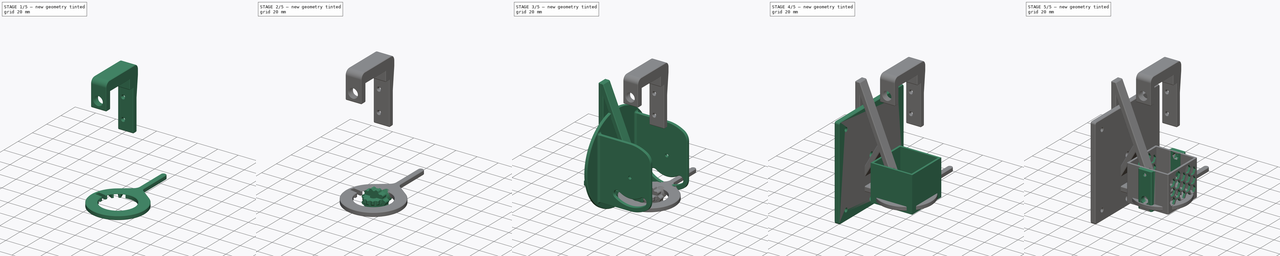
[diagram: build sequence overview — one tinted view per stage of 5, left to right]
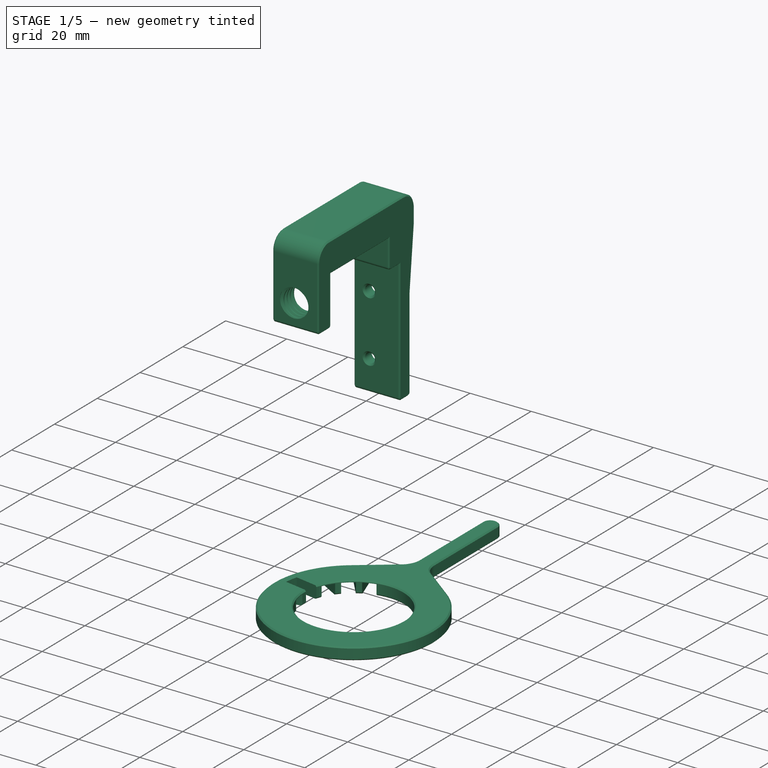
[diagram: stage 1 of 5 — iso view after this stage's code; geometry added in this stage tinted green]
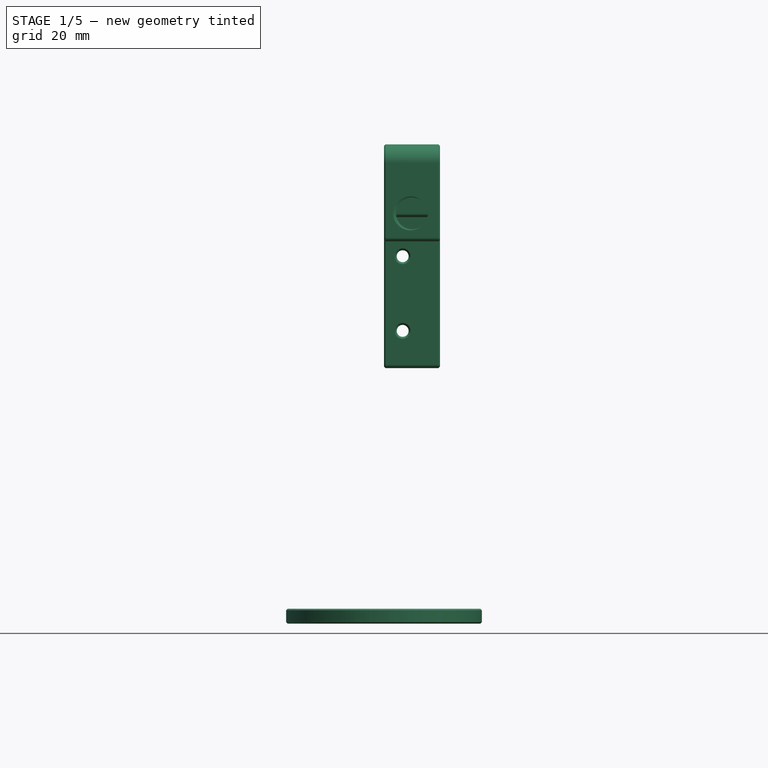
[diagram: stage 1 of 5 — front view after this stage's code; geometry added in this stage tinted green]
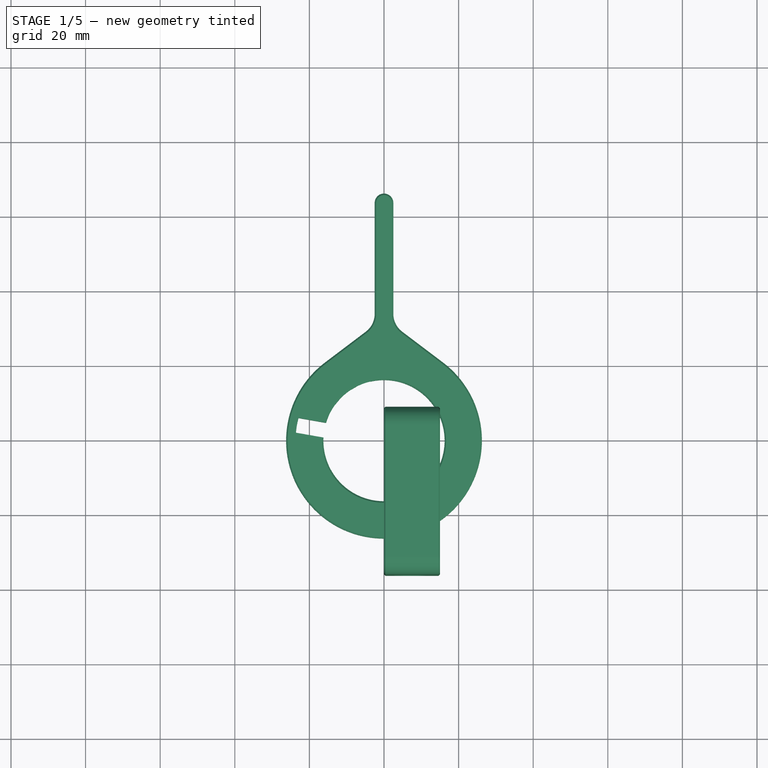
[diagram: stage 1 of 5 — top view after this stage's code; geometry added in this stage tinted green]
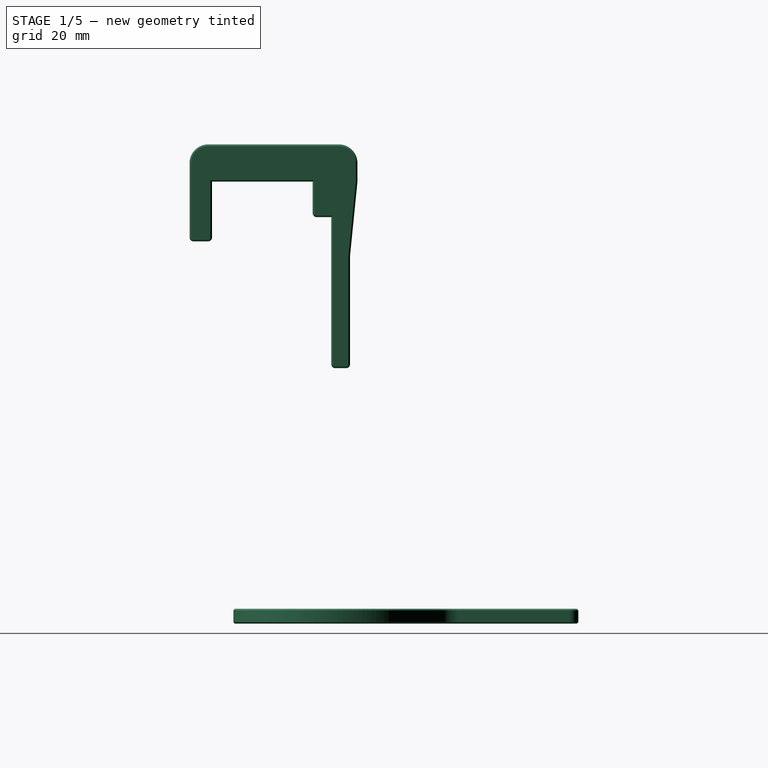
[diagram: stage 1 of 5 — right view after this stage's code; geometry added in this stage tinted green]
FCSTD DOCUMENT  (FreeCAD 1.0R39319 (Git))
Label: camera-mount
License: All rights reserved
LicenseURL: http://en.wikipedia.org/wiki/All_rights_reserved
objects: Sketcher::SketchObject×41, PartDesign::Pad×18, PartDesign::Pocket×16, PartDesign::Chamfer×13, PartDesign::Body×11, PartDesign::Fillet×6, PartDesign::Mirrored×4, PartDesign::LinearPattern×4, PartDesign::PolarPattern×3, PartDesign::SubShapeBinder×3, PartDesign::Plane×2, PartDesign::MultiTransform×2, Part::FeaturePython×2, Part::MultiFuse×2, Spreadsheet::Sheet×1, PartDesign::Groove×1, PartDesign::FeatureBase×1, PartDesign::Hole×1
note: 295 computed .brp shape members not serialized (recipe doc carries the construction recipe); baked Part::Feature solids carry a one-line shape summary decoded from their .brp

FEATURE [Sketcher::SketchObject] Sketch030
  ArcFitTolerance = 1e-06
  AttachmentSupport = -> [XZ_Plane007]
  FullyConstrained = false
  MakeInternals = false
  MapMode = 5
  Placement = pos=(0,0,0) rot=(1,0,0;1.5708rad)
  sketch-geometry (123):
    g0: LineSegment StartX=60 StartY=-108.5 StartZ=0 EndX=60 EndY=108.5 EndZ=0
    g1: LineSegment StartX=60 StartY=108.5 StartZ=0 EndX=-60 EndY=108.5 EndZ=0
    g2: LineSegment StartX=-60 StartY=108.5 StartZ=0 EndX=-60 EndY=-108.5 EndZ=0
    g3: LineSegment StartX=-60 StartY=-108.5 StartZ=0 EndX=60 EndY=-108.5 EndZ=0
    g4: GeomPoint [constr] X=0 Y=0 Z=0
    g5: Circle CenterX=-42.3 CenterY=-23.5 CenterZ=0 NormalX=0 NormalY=0 NormalZ=1 AngleXU=0 Radius=2.35
    g6: Circle CenterX=42.3 CenterY=-23.5 CenterZ=0 NormalX=0 NormalY=0 NormalZ=1 AngleXU=0 Radius=2.35
    g7: Circle CenterX=-42.3 CenterY=-98.5 CenterZ=0 NormalX=0 NormalY=0 NormalZ=1 AngleXU=0 Radius=2.35
    g8: Circle CenterX=42.3 CenterY=-98.5 CenterZ=0 NormalX=0 NormalY=0 NormalZ=1 AngleXU=0 Radius=2.35
    g9: Circle CenterX=-37 CenterY=-3.5 CenterZ=0 NormalX=0 NormalY=0 NormalZ=1 AngleXU=0 Radius=2.35
    g10: Circle CenterX=37 CenterY=-3.5 CenterZ=0 NormalX=0 NormalY=0 NormalZ=1 AngleXU=0 Radius=2.35
    g11: Circle CenterX=-37 CenterY=44.5 CenterZ=0 NormalX=0 NormalY=0 NormalZ=1 AngleXU=0 Radius=2.35
    g12: Circle CenterX=37 CenterY=44.5 CenterZ=0 NormalX=0 NormalY=0 NormalZ=1 AngleXU=0 Radius=2.35
    g13: LineSegment [constr] StartX=-37 StartY=44.5 StartZ=0 EndX=-37 EndY=-3.5 EndZ=0
    g14: LineSegment [constr] StartX=-37 StartY=-3.5 StartZ=0 EndX=37 EndY=-3.5 EndZ=0
    g15: LineSegment [constr] StartX=37 StartY=-3.5 StartZ=0 EndX=37 EndY=44.5 EndZ=0
    g16: LineSegment [constr] StartX=37 StartY=44.5 StartZ=0 EndX=-37 EndY=44.5 EndZ=0
    g17: LineSegment [constr] StartX=-60 StartY=108.5 StartZ=0 EndX=-60 EndY=78.5 EndZ=0
    g18: LineSegment [constr] StartX=-60 StartY=78.5 StartZ=0 EndX=-55 EndY=78.5 EndZ=0
    g19: LineSegment [constr] StartX=-55 StartY=78.5 StartZ=0 EndX=-55 EndY=108.5 EndZ=0
    g20: LineSegment [constr] StartX=-55 StartY=108.5 StartZ=0 EndX=-60 EndY=108.5 EndZ=0
    g21: Circle CenterX=-55 CenterY=78.5 CenterZ=0 NormalX=0 NormalY=0 NormalZ=1 AngleXU=0 Radius=2.35
    g22: Circle CenterX=-55 CenterY=98.5 CenterZ=0 NormalX=0 NormalY=0 NormalZ=1 AngleXU=0 Radius=2.35
    g23: Circle CenterX=55 CenterY=78.5 CenterZ=0 NormalX=0 NormalY=0 NormalZ=1 AngleXU=0 Radius=2.35
    g24: Circle CenterX=55 CenterY=98.5 CenterZ=0 NormalX=0 NormalY=0 NormalZ=1 AngleXU=0 Radius=2.35
    g25: LineSegment StartX=-32 StartY=35.5 StartZ=0 EndX=-32 EndY=5.5 EndZ=0
    g26: LineSegment StartX=-28 StartY=1.5 StartZ=0 EndX=28 EndY=1.5 EndZ=0
    g27: LineSegment StartX=32 StartY=5.5 StartZ=0 EndX=32 EndY=35.5 EndZ=0
    g28: LineSegment StartX=28 StartY=39.5 StartZ=0 EndX=-28 EndY=39.5 EndZ=0
    g29: ArcOfCircle CenterX=-28 CenterY=35.5 CenterZ=0 NormalX=0 NormalY=0 NormalZ=1 AngleXU=0 Radius=4 StartAngle=1.5708 EndAngle=3.14159
    g30: ArcOfCircle CenterX=-28 CenterY=5.5 CenterZ=0 NormalX=0 NormalY=0 NormalZ=1 AngleXU=0 Radius=4 StartAngle=3.14159 EndAngle=4.71239
    g31: ArcOfCircle CenterX=28 CenterY=5.5 CenterZ=0 NormalX=0 NormalY=0 NormalZ=1 AngleXU=0 Radius=4 StartAngle=4.71239 EndAngle=6.28319
    g32: ArcOfCircle CenterX=28 CenterY=35.5 CenterZ=0 NormalX=0 NormalY=0 NormalZ=1 AngleXU=0 Radius=4 StartAngle=0 EndAngle=1.5708
    g33: GeomPoint [constr] X=-32 Y=39.5 Z=0
    g34: GeomPoint [constr] X=32 Y=1.5 Z=0
    g35: LineSegment StartX=-46 StartY=103.5 StartZ=0 EndX=-9 EndY=103.5 EndZ=0
    g36: ArcOfCircle CenterX=-9 CenterY=99.5 CenterZ=0 NormalX=0 NormalY=0 NormalZ=1 AngleXU=0 Radius=4 StartAngle=6e-16 EndAngle=1.5708
    g37: LineSegment StartX=-5 StartY=99.5 StartZ=0 EndX=-5 EndY=53.5 EndZ=0
    g38: ArcOfCircle CenterX=-9 CenterY=53.5 CenterZ=0 NormalX=0 NormalY=0 NormalZ=1 AngleXU=0 Radius=4 StartAngle=4.71239 EndAngle=6.28319
    g39: LineSegment StartX=-9 StartY=49.5 StartZ=0 EndX=-31.5813 EndY=49.5 EndZ=0
    g40: ArcOfCircle CenterX=-31.5813 CenterY=53.5 CenterZ=0 NormalX=0 NormalY=0 NormalZ=1 AngleXU=0 Radius=4 StartAngle=3.62849 EndAngle=4.71239
    g41: LineSegment StartX=-35.1164 StartY=51.6284 StartZ=0 EndX=-49.5352 EndY=78.8638 EndZ=0
    g42: ArcOfCircle CenterX=-46 CenterY=80.7354 CenterZ=0 NormalX=0 NormalY=0 NormalZ=1 AngleXU=0 Radius=4 StartAngle=3.14159 EndAngle=3.62849
    g43: LineSegment StartX=-50 StartY=80.7354 StartZ=0 EndX=-50 EndY=99.5 EndZ=0
    g44: ArcOfCircle CenterX=-46 CenterY=99.5 CenterZ=0 NormalX=0 NormalY=0 NormalZ=1 AngleXU=0 Radius=4 StartAngle=1.5708 EndAngle=3.14159
    g45: LineSegment StartX=-55 StartY=51.7091 StartZ=0 EndX=-55 EndY=-21.1957 EndZ=0
    g46: ArcOfCircle CenterX=-51 CenterY=-21.1957 CenterZ=0 NormalX=0 NormalY=0 NormalZ=1 AngleXU=0 Radius=4 StartAngle=3.14159 EndAngle=6.02414
    g47: LineSegment StartX=-47.1335 StartY=-22.2203 StartZ=0 EndX=-42.1335 EndY=-3.35236 EndZ=0
    g48: ArcOfCircle CenterX=-46 CenterY=-2.32773 CenterZ=0 NormalX=0 NormalY=0 NormalZ=1 AngleXU=0 Radius=4 StartAngle=6.02414 EndAngle=6.28319
    g49: LineSegment StartX=-42 StartY=-2.32773 StartZ=0 EndX=-42 EndY=42.2646 EndZ=0
    g50: ArcOfCircle CenterX=-46 CenterY=42.2646 CenterZ=0 NormalX=0 NormalY=0 NormalZ=1 AngleXU=0 Radius=4 StartAngle=0 EndAngle=0.486899
    g51: LineSegment StartX=-42.4648 StartY=44.1362 StartZ=0 EndX=-47.4648 EndY=53.5806 EndZ=0
    g52: ArcOfCircle CenterX=-51 CenterY=51.7091 CenterZ=0 NormalX=0 NormalY=0 NormalZ=1 AngleXU=0 Radius=4 StartAngle=0.486899 EndAngle=3.14159
    g53: LineSegment [constr] StartX=-55 StartY=78.5 StartZ=0 EndX=-37 EndY=44.5 EndZ=0
    g54: LineSegment [constr] StartX=-42.3 StartY=-23.5 StartZ=0 EndX=-42.3 EndY=-98.5 EndZ=0
    g55: LineSegment [constr] StartX=-42.3 StartY=-98.5 StartZ=0 EndX=42.3 EndY=-98.5 EndZ=0
    g56: LineSegment [constr] StartX=42.3 StartY=-98.5 StartZ=0 EndX=42.3 EndY=-23.5 EndZ=0
    g57: LineSegment [constr] StartX=42.3 StartY=-23.5 StartZ=0 EndX=-42.3 EndY=-23.5 EndZ=0
    g58: LineSegment StartX=-37.3 StartY=-32.5 StartZ=0 EndX=-37.3 EndY=-89.5 EndZ=0
    g59: LineSegment StartX=-33.3 StartY=-93.5 StartZ=0 EndX=33.3 EndY=-93.5 EndZ=0
    g60: LineSegment StartX=37.3 StartY=-89.5 StartZ=0 EndX=37.3 EndY=-32.5 EndZ=0
    g61: LineSegment StartX=33.3 StartY=-28.5 StartZ=0 EndX=-33.3 EndY=-28.5 EndZ=0
    g62: ArcOfCircle CenterX=-33.3 CenterY=-32.5 CenterZ=0 NormalX=0 NormalY=0 NormalZ=1 AngleXU=0 Radius=4 StartAngle=1.5708 EndAngle=3.14159
    g63: ArcOfCircle CenterX=-33.3 CenterY=-89.5 CenterZ=0 NormalX=0 NormalY=0 NormalZ=1 AngleXU=0 Radius=4 StartAngle=3.14159 EndAngle=4.71239
    g64: ArcOfCircle CenterX=33.3 CenterY=-89.5 CenterZ=0 NormalX=0 NormalY=0 NormalZ=1 AngleXU=0 Radius=4 StartAngle=4.71239 EndAngle=6.28319
    g65: ArcOfCircle CenterX=33.3 CenterY=-32.5 CenterZ=0 NormalX=0 NormalY=0 NormalZ=1 AngleXU=0 Radius=4 StartAngle=-9e-16 EndAngle=1.5708
    g66: GeomPoint [constr] X=-37.3 Y=-28.5 Z=0
    g67: GeomPoint [constr] X=37.3 Y=-93.5 Z=0
    g68: LineSegment StartX=-33.1809 StartY=-11.4754 StartZ=0 EndX=-33.7109 EndY=-13.4754 EndZ=0
    g69: LineSegment StartX=-29.8444 StartY=-18.5 StartZ=0 EndX=-9 EndY=-18.5 EndZ=0
    g70: LineSegment StartX=-5 StartY=-14.5 StartZ=0 EndX=-5 EndY=-12.5 EndZ=0
    g71: LineSegment StartX=-9 StartY=-8.5 StartZ=0 EndX=-29.3144 EndY=-8.5 EndZ=0
    g72: ArcOfCircle CenterX=-29.3144 CenterY=-12.5 CenterZ=0 NormalX=0 NormalY=0 NormalZ=1 AngleXU=0 Radius=4 StartAngle=1.5708 EndAngle=2.88255
    g73: ArcOfCircle CenterX=-29.8444 CenterY=-14.5 CenterZ=0 NormalX=0 NormalY=0 NormalZ=1 AngleXU=0 Radius=4 StartAngle=2.88255 EndAngle=4.71239
    g74: ArcOfCircle CenterX=-9 CenterY=-14.5 CenterZ=0 NormalX=0 NormalY=0 NormalZ=1 AngleXU=0 Radius=4 StartAngle=4.71239 EndAngle=6.28319
    g75: ArcOfCircle CenterX=-9 CenterY=-12.5 CenterZ=0 NormalX=0 NormalY=0 NormalZ=1 AngleXU=0 Radius=4 StartAngle=0 EndAngle=1.5708
    g76: GeomPoint [constr] X=-32.3925 Y=-8.5 Z=0
    g77: GeomPoint [constr] X=-5 Y=-18.5 Z=0
    g78: LineSegment [constr] StartX=-37 StartY=-3.5 StartZ=0 EndX=-42.3 EndY=-23.5 EndZ=0
    g79: LineSegment StartX=-55 StartY=-32.5 StartZ=0 EndX=-55 EndY=-90.4274 EndZ=0
    g80: LineSegment StartX=-52 StartY=-93.4274 StartZ=0 EndX=-50.3 EndY=-93.4274 EndZ=0
    g81: LineSegment StartX=-47.3 StartY=-90.4274 StartZ=0 EndX=-47.3 EndY=-32.5 EndZ=0
    g82: LineSegment StartX=-50.3 StartY=-29.5 StartZ=0 EndX=-52 EndY=-29.5 EndZ=0
    g83: ArcOfCircle CenterX=-52 CenterY=-32.5 CenterZ=0 NormalX=0 NormalY=0 NormalZ=1 AngleXU=0 Radius=3 StartAngle=1.5708 EndAngle=3.14159
    g84: ArcOfCircle CenterX=-52 CenterY=-90.4274 CenterZ=0 NormalX=0 NormalY=0 NormalZ=1 AngleXU=0 Radius=3 StartAngle=3.14159 EndAngle=4.71239
    g85: ArcOfCircle CenterX=-50.3 CenterY=-90.4274 CenterZ=0 NormalX=0 NormalY=0 NormalZ=1 AngleXU=0 Radius=3 StartAngle=4.71239 EndAngle=6.28319
    g86: ArcOfCircle CenterX=-50.3 CenterY=-32.5 CenterZ=0 NormalX=0 NormalY=0 NormalZ=1 AngleXU=0 Radius=3 StartAngle=4.42e-14 EndAngle=1.5708
    g87: GeomPoint [constr] X=-55 Y=-29.5 Z=0
    g88: GeomPoint [constr] X=-47.3 Y=-93.4274 Z=0
    g89: LineSegment StartX=5 StartY=99.5 StartZ=0 EndX=5 EndY=53.5 EndZ=0
    g90: ArcOfCircle CenterX=46 CenterY=99.5 CenterZ=0 NormalX=0 NormalY=0 NormalZ=1 AngleXU=0 Radius=4 StartAngle=0 EndAngle=1.5708
    g91: LineSegment StartX=46 StartY=103.5 StartZ=0 EndX=9 EndY=103.5 EndZ=0
    g92: ArcOfCircle CenterX=9 CenterY=99.5 CenterZ=0 NormalX=0 NormalY=0 NormalZ=1 AngleXU=0 Radius=4 StartAngle=1.5708 EndAngle=3.14159
    g93: ArcOfCircle CenterX=9 CenterY=53.5 CenterZ=0 NormalX=0 NormalY=0 NormalZ=1 AngleXU=0 Radius=4 StartAngle=3.14159 EndAngle=4.71239
    g94: LineSegment StartX=9 StartY=49.5 StartZ=0 EndX=31.5813 EndY=49.5 EndZ=0
    g95: ArcOfCircle CenterX=31.5813 CenterY=53.5 CenterZ=0 NormalX=0 NormalY=0 NormalZ=1 AngleXU=0 Radius=4 StartAngle=4.71239 EndAngle=5.79629
    g96: LineSegment StartX=35.1164 StartY=51.6284 StartZ=0 EndX=49.5352 EndY=78.8638 EndZ=0
    g97: ArcOfCircle CenterX=46 CenterY=80.7354 CenterZ=0 NormalX=0 NormalY=0 NormalZ=1 AngleXU=0 Radius=4 StartAngle=5.79629 EndAngle=6.28319
    g98: LineSegment StartX=50 StartY=80.7354 StartZ=0 EndX=50 EndY=99.5 EndZ=0
    g99: LineSegment StartX=42 StartY=-2.32773 StartZ=0 EndX=42 EndY=42.2646 EndZ=0
    g100: ArcOfCircle CenterX=46 CenterY=-2.32773 CenterZ=0 NormalX=0 NormalY=0 NormalZ=1 AngleXU=0 Radius=4 StartAngle=3.14159 EndAngle=3.40064
    g101: LineSegment StartX=47.1335 StartY=-22.2203 StartZ=0 EndX=42.1335 EndY=-3.35236 EndZ=0
    g102: ArcOfCircle CenterX=51 CenterY=-21.1957 CenterZ=0 NormalX=0 NormalY=0 NormalZ=1 AngleXU=0 Radius=4 StartAngle=3.40064 EndAngle=6.28319
    g103: LineSegment StartX=55 StartY=51.7091 StartZ=0 EndX=55 EndY=-21.1957 EndZ=0
    g104: ArcOfCircle CenterX=46 CenterY=42.2646 CenterZ=0 NormalX=0 NormalY=0 NormalZ=1 AngleXU=0 Radius=4 StartAngle=2.65469 EndAngle=3.14159
    g105: LineSegment StartX=42.4648 StartY=44.1362 StartZ=0 EndX=47.4648 EndY=53.5806 EndZ=0
    g106: ArcOfCircle CenterX=51 CenterY=51.7091 CenterZ=0 NormalX=0 NormalY=0 NormalZ=1 AngleXU=0 Radius=4 StartAngle=0 EndAngle=2.65469
    g107: LineSegment StartX=9 StartY=-8.5 StartZ=0 EndX=29.3144 EndY=-8.5 EndZ=0
    g108: ArcOfCircle CenterX=29.3144 CenterY=-12.5 CenterZ=0 NormalX=0 NormalY=0 NormalZ=1 AngleXU=0 Radius=4 StartAngle=0.259046 EndAngle=1.5708
    g109: LineSegment StartX=33.1809 StartY=-11.4754 StartZ=0 EndX=33.7109 EndY=-13.4754 EndZ=0
    g110: ArcOfCircle CenterX=29.8444 CenterY=-14.5 CenterZ=0 NormalX=0 NormalY=0 NormalZ=1 AngleXU=0 Radius=4 StartAngle=4.71239 EndAngle=6.54223
    g111: LineSegment StartX=29.8444 StartY=-18.5 StartZ=0 EndX=9 EndY=-18.5 EndZ=0
    g112: ArcOfCircle CenterX=9 CenterY=-14.5 CenterZ=0 NormalX=0 NormalY=0 NormalZ=1 AngleXU=0 Radius=4 StartAngle=3.14159 EndAngle=4.71239
    g113: LineSegment StartX=5 StartY=-14.5 StartZ=0 EndX=5 EndY=-12.5 EndZ=0
    g114: ArcOfCircle CenterX=9 CenterY=-12.5 CenterZ=0 NormalX=0 NormalY=0 NormalZ=1 AngleXU=0 Radius=4 StartAngle=1.5708 EndAngle=3.14159
    g115: LineSegment StartX=47.3 StartY=-90.4274 StartZ=0 EndX=47.3 EndY=-32.5 EndZ=0
    g116: ArcOfCircle CenterX=50.3 CenterY=-90.4274 CenterZ=0 NormalX=0 NormalY=0 NormalZ=1 AngleXU=0 Radius=3 StartAngle=3.14159 EndAngle=4.71239
    g117: LineSegment StartX=52 StartY=-93.4274 StartZ=0 EndX=50.3 EndY=-93.4274 EndZ=0
    g118: ArcOfCircle CenterX=52 CenterY=-90.4274 CenterZ=0 NormalX=0 NormalY=0 NormalZ=1 AngleXU=0 Radius=3 StartAngle=4.71239 EndAngle=6.28319
    g119: LineSegment StartX=55 StartY=-32.5 StartZ=0 EndX=55 EndY=-90.4274 EndZ=0
    g120: ArcOfCircle CenterX=52 CenterY=-32.5 CenterZ=0 NormalX=0 NormalY=0 NormalZ=1 AngleXU=0 Radius=3 StartAngle=9.47e-14 EndAngle=1.5708
    g121: LineSegment StartX=50.3 StartY=-29.5 StartZ=0 EndX=52 EndY=-29.5 EndZ=0
    g122: ArcOfCircle CenterX=50.3 CenterY=-32.5 CenterZ=0 NormalX=0 NormalY=0 NormalZ=1 AngleXU=0 Radius=3 StartAngle=1.5708 EndAngle=3.14159
  constraints (275):
    c: Coincident(g0,g1)
    c: Coincident(g1,g2)
    c: Coincident(g2,g3)
    c: Coincident(g3,g0)
    c: Vertical(g0)
    c: Vertical(g2)
    c: Horizontal(g1)
    c: Horizontal(g3)
    c: Symmetric(g2,g0,g4)
    c: Coincident(g4,g-1)
    c: DistanceX(g7,g8) = 84.6
    c: DistanceY(g8,g6) = 75
    c: Vertical(g8,g6)
    c: Vertical(g7,g5)
    c: Horizontal(g6,g5)
    c: Symmetric(g8,g7,g-2)
    c: Equal(g7,g8)
    c: Equal(g8,g6)
    c: Equal(g6,g5)
    c: Diameter(g5) = 4.7
    c: Equal(g11,g12)
    c: Equal(g12,g10)
    c: Equal(g10,g9)
    c: Diameter(g9) = 4.7
    c: Coincident(g13,g14)
    c: Coincident(g14,g15)
    c: Coincident(g15,g16)
    c: Coincident(g16,g13)
    c: Vertical(g13)
    c: Vertical(g15)
    c: Horizontal(g16)
    c: Coincident(g13,g11)
    c: Coincident(g14,g10)
    c: Coincident(g12,g15)
    c: Coincident(g9,g13)
    c: DistanceX(g16,g16) = 74
    c: DistanceY(g15,g15) = 48
    c: Coincident(g17,g18)
    c: Coincident(g18,g19)
    c: Coincident(g19,g20)
    c: Coincident(g20,g17)
    c: Vertical(g17)
    c: Vertical(g19)
    c: Horizontal(g18)
    c: Horizontal(g20)
    c: Coincident(g17,g1)
    c: Coincident(g21,g18)
    c: Symmetric(g24,g22,g-2)
    c: Symmetric(g18,g23,g-2)
    c: Equal(g22,g21)
    c: Equal(g21,g24)
    c: Equal(g24,g23)
    c: Diameter(g22) = 4.7
    c: DistanceY(g22,g19) = 10
    c: DistanceY(g19,g19) = 30
    c: DistanceX(g18,g18) = 5
    c: PointOnObject(g22,g19)
    c: Tangent(g25,g29) = -1.5708
    c: Tangent(g25,g30) = -1.5708
    c: Tangent(g26,g30) = -1.5708
    c: Tangent(g26,g31) = -1.5708
    c: Tangent(g27,g31) = -1.5708
    c: Tangent(g27,g32) = -1.5708
    c: Tangent(g28,g32) = -1.5708
    c: Tangent(g28,g29) = -1.5708
    c: Vertical(g25)
    c: Vertical(g27)
    c: Horizontal(g26)
    c: Horizontal(g28)
    c: Equal(g29,g30)
    c: Equal(g31,g32)
    c: PointOnObject(g33,g25)
    c: PointOnObject(g33,g28)
    c: PointOnObject(g34,g26)
    c: PointOnObject(g34,g27)
    c: Radius(g30) = 4
    c: Horizontal(g35)
    c: Tangent(g35,g36) = 1.5708
    c: Tangent(g36,g37) = 1.5708
    c: Tangent(g37,g38) = 1.5708
    c: Tangent(g38,g39) = 1.5708
    c: Tangent(g39,g40) = 1.5708
    c: Tangent(g40,g41) = 1.5708
    c: Tangent(g41,g42) = 1.5708
    c: Tangent(g42,g43) = 1.5708
    c: Tangent(g43,g44) = 1.5708
    c: Tangent(g44,g35) = 1.5708
    c: Vertical(g37)
    c: Vertical(g43)
    c: Horizontal(g39)
    c: Equal(g38,g40)
    c: Equal(g40,g42)
    c: Equal(g42,g44)
    c: Equal(g44,g36)
    c: Equal(g36,g29)
    c: DistanceY(g11,g39) = 5
    c: DistanceY(g28,g11) = 5
    c: DistanceX(g11,g25) = 5
    c: Symmetric(g9,g10,g-2)
    c: DistanceY(g9,g26) = 5
    c: Symmetric(g31,g30,g-2)
    c: DistanceX(g22,g43) = 5
    c: DistanceY(g35,g1) = 5
    c: Distance(g36,g-2) = 5
    c: DistanceY(g12,g0) = 64
    c: DistanceX(g1,g1) = 120
    c: Vertical(g45)
    c: Tangent(g45,g46) = -1.5708
    c: Tangent(g46,g47) = -1.5708
    c: Tangent(g47,g48) = -1.5708
    c: Tangent(g48,g49) = -1.5708
    c: Tangent(g49,g50) = -1.5708
    c: Tangent(g50,g51) = -1.5708
    c: Tangent(g51,g52) = -1.5708
    c: Tangent(g52,g45) = -1.5708
    c: Parallel(g51,g41)
    c: Coincident(g53,g18)
    c: Coincident(g53,g11)
    c: Parallel(g51,g53)
    c: Vertical(g49)
    c: Distance(g49,g13) = 5
    c: Distance(g45,g2) = 5
    c: Distance(g51,g53) = 5
    c: Distance(g40,g53) = 5
    c: Equal(g52,g50)
    c: Equal(g50,g48)
    c: Equal(g48,g46)
    c: Equal(g46,g29)
    c: DistanceY(g6,g10) = 20
    c: DistanceY(g0,g8) = 10
    c: Coincident(g54,g55)
    c: Coincident(g55,g56)
    c: Coincident(g56,g57)
    c: Coincident(g57,g54)
    c: Vertical(g54)
    c: Vertical(g56)
    c: Horizontal(g55)
    c: Horizontal(g57)
    c: Coincident(g54,g5)
    c: Coincident(g55,g8)
    c: Tangent(g58,g62) = -1.5708
    c: Tangent(g58,g63) = -1.5708
    c: Tangent(g59,g63) = -1.5708
    c: Tangent(g59,g64) = -1.5708
    c: Tangent(g60,g64) = -1.5708
    c: Tangent(g60,g65) = -1.5708
    c: Tangent(g61,g65) = -1.5708
    c: Tangent(g61,g62) = -1.5708
    c: Vertical(g58)
    c: Vertical(g60)
    c: Horizontal(g59)
    c: Equal(g62,g63)
    c: Equal(g63,g64)
    c: Equal(g64,g65)
    c: PointOnObject(g66,g58)
    c: PointOnObject(g66,g61)
    c: PointOnObject(g67,g59)
    c: PointOnObject(g67,g60)
    c: Equal(g64,g29)
    c: Symmetric(g61,g61,g-2)
    c: Distance(g61,g57) = 5
    c: DistanceX(g60,g6) = 5
    c: Tangent(g68,g72) = -1.5708
    c: Tangent(g68,g73) = -1.5708
    c: Tangent(g69,g73) = -1.5708
    c: Tangent(g69,g74) = -1.5708
    c: Tangent(g70,g74) = -1.5708
    c: Tangent(g70,g75) = -1.5708
    c: Tangent(g71,g75) = -1.5708
    c: Tangent(g71,g72) = -1.5708
    c: Vertical(g70)
    c: Horizontal(g69)
    c: Horizontal(g71)
    c: Equal(g72,g73)
    c: Equal(g73,g74)
    c: Equal(g74,g75)
    c: PointOnObject(g76,g68)
    c: PointOnObject(g76,g71)
    c: PointOnObject(g77,g69)
    c: PointOnObject(g77,g70)
    c: Equal(g72,g30)
    c: Distance(g71,g14) = 5
    c: Distance(g69,g57) = 5
    c: Distance(g70,g-2) = 5
    c: Coincident(g78,g9)
    c: Coincident(g78,g5)
    c: Parallel(g68,g78)
    c: Parallel(g47,g78)
    c: Distance(g46,g78) = 5
    c: Distance(g59,g55) = 5
    c: Tangent(g79,g83) = -1.5708
    c: Tangent(g79,g84) = -1.5708
    c: Tangent(g80,g84) = -1.5708
    c: Tangent(g80,g85) = -1.5708
    c: Tangent(g81,g85) = -1.5708
    c: Tangent(g81,g86) = -1.5708
    c: Tangent(g82,g86) = -1.5708
    c: Tangent(g82,g83) = -1.5708
    c: Vertical(g79)
    c: Vertical(g81)
    c: Horizontal(g80)
    c: Horizontal(g82)
    c: Equal(g83,g84)
    c: Equal(g84,g85)
    c: Equal(g85,g86)
    c: PointOnObject(g87,g79)
    c: PointOnObject(g87,g82)
    c: PointOnObject(g88,g80)
    c: PointOnObject(g88,g81)
    c: Vertical(g79,g45)
    c: Distance(g81,g54) = 5
    c: Horizontal(g86,g62)
    c: Radius(g83) = 3
    c: Horizontal(g91)
    c: Tangent(g91,g92) = -1.5708
    c: Tangent(g92,g89) = -1.5708
    c: Tangent(g89,g93) = -1.5708
    c: Tangent(g93,g94) = -1.5708
    c: Tangent(g94,g95) = -1.5708
    c: Tangent(g95,g96) = -1.5708
    c: Tangent(g96,g97) = -1.5708
    c: Tangent(g97,g98) = -1.5708
    c: Tangent(g98,g90) = -1.5708
    c: Tangent(g90,g91) = -1.5708
    c: Vertical(g89)
    c: Vertical(g98)
    c: Horizontal(g94)
    c: Equal(g93,g95)
    c: Equal(g95,g97)
    c: Equal(g97,g90)
    c: Equal(g90,g92)
    c: Vertical(g103)
    c: Tangent(g103,g102) = 1.5708
    c: Tangent(g102,g101) = 1.5708
    c: Tangent(g101,g100) = 1.5708
    c: Tangent(g100,g99) = 1.5708
    c: Tangent(g99,g104) = 1.5708
    c: Tangent(g104,g105) = 1.5708
    c: Tangent(g105,g106) = 1.5708
    c: Tangent(g106,g103) = 1.5708
    c: Vertical(g99)
    c: Equal(g106,g104)
    c: Equal(g104,g100)
    c: Equal(g100,g102)
    c: Tangent(g109,g108) = 1.5708
    c: Tangent(g109,g110) = 1.5708
    c: Tangent(g111,g110) = 1.5708
    c: Tangent(g111,g112) = 1.5708
    c: Tangent(g113,g112) = 1.5708
    c: Tangent(g113,g114) = 1.5708
    c: Tangent(g107,g114) = 1.5708
    c: Tangent(g107,g108) = 1.5708
    c: Vertical(g113)
    c: Horizontal(g111)
    c: Horizontal(g107)
    c: Equal(g108,g110)
    c: Equal(g110,g112)
    c: Equal(g112,g114)
    c: Tangent(g119,g120) = 1.5708
    c: Tangent(g119,g118) = 1.5708
    c: Tangent(g117,g118) = 1.5708
    c: Tangent(g117,g116) = 1.5708
    c: Tangent(g115,g116) = 1.5708
    c: Tangent(g115,g122) = 1.5708
    c: Tangent(g121,g122) = 1.5708
    c: Tangent(g121,g120) = 1.5708
    c: Vertical(g119)
    c: Vertical(g115)
    c: Horizontal(g117)
    c: Horizontal(g121)
    c: Equal(g120,g118)
    c: Equal(g118,g116)
    c: Equal(g116,g122)
    c: Radius(g120) = 3
    c: DistanceY(g0,g0) = 217
FEATURE [PartDesign::Pad] Pad013
  Direction = (0,-1,2e-16)
  Length = 5
  Length2 = 10
  Placement = pos=(0,0,0) rot=(1,0,0;1.5708rad)
  Profile = -> Sketch030
  ReferenceAxis = -> Sketch030 [N_Axis]
  Suppressed = false
  Type = 0
FEATURE [PartDesign::Fillet] Fillet004
  Base = -> Pad013 [Edge5,Edge2,Edge8,Edge1]
  BaseFeature = -> Pad013
  Placement = pos=(0,0,0) rot=(1,0,0;1.5708rad)
  Radius = 2
  SupportTransform = false
  Suppressed = false
  UseAllEdges = false
FEATURE [PartDesign::Chamfer] Chamfer009
  Angle = 45
  Base = -> Fillet004 [Face5,Face2]
  BaseFeature = -> Fillet004
  ChamferType = 0
  FlipDirection = false
  Placement = pos=(0,0,0) rot=(1,0,0;1.5708rad)
  Size = 0.5
  Size2 = 1
  SupportTransform = false
  Suppressed = false
  UseAllEdges = false
FEATURE [PartDesign::Body] Body007  label="back-plate"
  AllowCompound = false
  Group = -> [Sketch030,Pad013,Fillet004,Chamfer009]
  Origin = -> Origin007
  Tip = -> Chamfer009
FEATURE [PartDesign::SubShapeBinder] Binder002
  BindCopyOnChange = 0
  BindMode = 0
  ClaimChildren = false
  Context = -> Body008 [Binder002.]
  Fuse = false
  MakeFace = true
  OffsetFill = false
  OffsetIntersection = false
  OffsetJoinType = 0
  OffsetOpenResult = false
  PartialLoad = false
  Relative = true
  Support = -> [Body007[Sketch030.]]
  _Version = 2
FEATURE [Sketcher::SketchObject] Sketch031
  ArcFitTolerance = 1e-06
  AttachmentSupport = -> [YZ_Plane008]
  ExternalGeometry = -> [Binder002]
  FullyConstrained = true
  MakeInternals = false
  MapMode = 5
  Placement = pos=(0,0,0) rot=(0.57735,0.57735,0.57735;2.0944rad)
  expr: Constraints[25] = 22 + 3 + 5 + 2
  sketch-geometry (18):
    g0: LineSegment StartX=0 StartY=68.5 StartZ=0 EndX=5 EndY=68.5 EndZ=0
    g1: LineSegment StartX=5 StartY=68.5 StartZ=0 EndX=5 EndY=98.5 EndZ=0
    g2: LineSegment StartX=5 StartY=98.5 StartZ=0 EndX=7 EndY=118.5 EndZ=0
    g3: LineSegment StartX=7 StartY=118.5 StartZ=0 EndX=7 EndY=123.5 EndZ=0
    g4: ArcOfCircle CenterX=2 CenterY=123.5 CenterZ=0 NormalX=0 NormalY=0 NormalZ=1 AngleXU=0 Radius=5 StartAngle=-9e-16 EndAngle=1.5708
    g5: LineSegment StartX=2 StartY=128.5 StartZ=0 EndX=-33 EndY=128.5 EndZ=0
    g6: ArcOfCircle CenterX=-33 CenterY=123.5 CenterZ=0 NormalX=0 NormalY=0 NormalZ=1 AngleXU=0 Radius=5 StartAngle=1.5708 EndAngle=3.14159
    g7: LineSegment StartX=-38 StartY=123.5 StartZ=0 EndX=-38 EndY=102.5 EndZ=0
    g8: LineSegment StartX=-38 StartY=102.5 StartZ=0 EndX=-32 EndY=102.5 EndZ=0
    g9: LineSegment StartX=-32 StartY=102.5 StartZ=0 EndX=-32 EndY=118.5 EndZ=0
    g10: GeomPoint [constr] X=1.74e-14 Y=78.5 Z=0
    g11: GeomPoint [constr] X=2.19e-14 Y=98.5 Z=0
    g12: LineSegment StartX=-5 StartY=118.5 StartZ=0 EndX=-5 EndY=109 EndZ=0
    g13: LineSegment StartX=-5 StartY=109 StartZ=0 EndX=0 EndY=109 EndZ=0
    g14: LineSegment StartX=-32 StartY=118.5 StartZ=0 EndX=-5 EndY=118.5 EndZ=0
    g15: LineSegment [constr] StartX=-5 StartY=118.5 StartZ=0 EndX=0 EndY=118.5 EndZ=0
    g16: LineSegment [constr] StartX=0 StartY=118.5 StartZ=0 EndX=0 EndY=109 EndZ=0
    g17: LineSegment StartX=0 StartY=109 StartZ=0 EndX=0 EndY=68.5 EndZ=0
  constraints (47):
    c: PointOnObject(g16,g-2)
    c: PointOnObject(g17,g-2)
    c: Coincident(g17,g0)
    c: Horizontal(g0)
    c: Coincident(g0,g1)
    c: Vertical(g1)
    c: Coincident(g1,g2)
    c: Coincident(g2,g3)
    c: Vertical(g3)
    c: Tangent(g3,g4) = -1.5708
    c: Tangent(g4,g5) = -1.5708
    c: Tangent(g5,g6) = -1.5708
    c: Tangent(g6,g7) = -1.5708
    c: Coincident(g7,g8)
    c: Coincident(g8,g9)
    c: Coincident(g9,g14)
    c: Coincident(g16,g15)
    c: DistanceX(g0,g0) = 5
    c: DistanceX(g16,g2) = 7
    c: DistanceY(g1,g2) = 20
    c: Horizontal(g2,g16)
    c: Horizontal(g5)
    c: Vertical(g9)
    c: Vertical(g7)
    c: Horizontal(g8)
    c: DistanceX(g14,g15) = 32
    c: DistanceY(g9,g9) = 16
    c: Radius(g4) = 5
    c: Equal(g6,g4)
    c: DistanceX(g8,g8) = 6
    c: DistanceY(g9,g5) = 10
    c: Symmetric(g-4,g-4,g11)
    c: Symmetric(g-5,g-5,g10)
    c: DistanceY(g17,g10) = 10
    c: DistanceY(g11,g16) = 20
    c: Vertical(g12)
    c: Coincident(g12,g13)
    c: Horizontal(g13)
    c: DistanceY(g12,g12) = 9.5
    c: DistanceX(g13,g13) = 5
    c: Coincident(g14,g15)
    c: Horizontal(g14)
    c: Horizontal(g15)
    c: Coincident(g16,g17)
    c: Coincident(g14,g12)
    c: Coincident(g16,g13)
    c: Vertical(g17)
FEATURE [PartDesign::Pad] Pad014
  Direction = (1,0,0)
  Length = 15
  Length2 = 10
  Placement = pos=(0,0,0) rot=(1,1,1;2.0944rad)
  Profile = -> Sketch031
  ReferenceAxis = -> Sketch031 [N_Axis]
  Suppressed = false
  Type = 0
FEATURE [Sketcher::SketchObject] Sketch034
  ArcFitTolerance = 1e-06
  AttachmentSupport = -> [Pad014]
  ExternalGeometry = -> [Pad014]
  FullyConstrained = true
  MakeInternals = false
  MapMode = 5
  Placement = pos=(-8.4e-15,-38,4.2e-15) rot=(0.57735,0.57735,-0.57735;2.0944rad)
  sketch-geometry (5):
    g0: Circle CenterX=-110 CenterY=7.5 CenterZ=0 NormalX=0 NormalY=0 NormalZ=1 AngleXU=0 Radius=5
    g1: LineSegment [constr] StartX=-110 StartY=15 StartZ=0 EndX=-110 EndY=7.5 EndZ=0
    g2: LineSegment [constr] StartX=-110 StartY=7.5 StartZ=0 EndX=-102.5 EndY=7.5 EndZ=0
    g3: LineSegment [constr] StartX=-102.5 StartY=7.5 StartZ=0 EndX=-102.5 EndY=15 EndZ=0
    g4: LineSegment [constr] StartX=-102.5 StartY=15 StartZ=0 EndX=-110 EndY=15 EndZ=0
  constraints (13):
    c: Coincident(g1,g2)
    c: Coincident(g2,g3)
    c: Coincident(g3,g4)
    c: Coincident(g4,g1)
    c: Vertical(g1)
    c: Vertical(g3)
    c: Horizontal(g2)
    c: Horizontal(g4)
    c: PointOnObject(g1,g-4)
    c: Symmetric(g-3,g-3,g2)
    c: Equal(g2,g1)
    c: Coincident(g1,g0)
    c: Diameter(g0) = 10
FEATURE [PartDesign::Hole] Hole
  BaseFeature = -> Pad014
  CustomThreadClearance = 0
  Depth = 25
  DepthType = 0
  Diameter = 8.532
  DrillForDepth = false
  DrillPoint = 1
  DrillPointAngle = 118
  HoleCutCountersinkAngle = 90
  HoleCutCustomValues = false
  HoleCutDepth = 0
  HoleCutDiameter = 6.1
  HoleCutType = 0
  ModelThread = true
  Placement = pos=(0,0,0) rot=(1,1,1;2.0944rad)
  Profile = -> Sketch034
  Suppressed = false
  Tapered = false
  TaperedAngle = 90
  ThreadClass = 0
  ThreadDepth = 25
  ThreadDepthType = 0
  ThreadDirection = 0
  ThreadFit = 0
  ThreadSize = 18
  ThreadType = 1
  Threaded = true
  UseCustomThreadClearance = false
FEATURE [PartDesign::Fillet] Fillet005
  Base = -> Hole [Edge45,Edge39,Edge2,Edge1,Edge33]
  BaseFeature = -> Hole
  Placement = pos=(0,0,0) rot=(1,1,1;2.0944rad)
  Radius = 1
  SupportTransform = false
  Suppressed = false
  UseAllEdges = false
FEATURE [PartDesign::Chamfer] Chamfer010
  Angle = 45
  Base = -> Fillet005 [Face2,Face5]
  BaseFeature = -> Fillet005
  ChamferType = 0
  FlipDirection = false
  Placement = pos=(0,0,0) rot=(1,1,1;2.0944rad)
  Size = 0.4
  Size2 = 1
  SupportTransform = false
  Suppressed = false
  UseAllEdges = false
FEATURE [Sketcher::SketchObject] Sketch032
  ArcFitTolerance = 1e-06
  AttachmentSupport = -> [Chamfer010]
  ExternalGeometry = -> [Binder002,Chamfer010]
  FullyConstrained = true
  MakeInternals = false
  MapMode = 5
  Placement = pos=(1.1e-15,5,-2.2e-15) rot=(0.57735,0.57735,0.57735;4.18879rad)
  sketch-geometry (3):
    g0: Circle CenterX=78.5 CenterY=5 CenterZ=0 NormalX=0 NormalY=0 NormalZ=1 AngleXU=0 Radius=1.6
    g1: Circle CenterX=98.5 CenterY=5 CenterZ=0 NormalX=0 NormalY=0 NormalZ=1 AngleXU=0 Radius=1.6
    g2: LineSegment [constr] StartX=69.5 StartY=5 StartZ=0 EndX=108.5 EndY=5 EndZ=0
  constraints (10):
    c: Equal(g1,g0)
    c: Diameter(g0) = 3.2
    c: Horizontal(g2)
    c: PointOnObject(g2,g-6)
    c: PointOnObject(g1,g2)
    c: PointOnObject(g0,g2)
    c: Vertical(g0,g-3)
    c: Vertical(g-4,g1)
    c: Distance(g2,g-1) = 5
    c: PointOnObject(g2,g-5)
FEATURE [PartDesign::Pocket] Pocket012
  BaseFeature = -> Chamfer010
  Direction = (0,-1,0)
  Length = 10
  Length2 = 5
  Midplane = true
  Placement = pos=(0,0,0) rot=(1,1,1;2.0944rad)
  Profile = -> Sketch032
  ReferenceAxis = -> Sketch032 [N_Axis]
  Suppressed = false
  Type = 0
FEATURE [Sketcher::SketchObject] Sketch033
  ArcFitTolerance = 1e-06
  AttachmentOffset = pos=(0,0,-1) rot=(0,0,1;0rad)
  AttachmentSupport = -> [Pocket012]
  ExternalGeometry = -> [Pocket012]
  FullyConstrained = true
  MakeInternals = false
  MapMode = 5
  Placement = pos=(1.1e-15,4,-3.9e-15) rot=(0.57735,0.57735,0.57735;4.18879rad)
  sketch-geometry (2):
    g0: Circle CenterX=78.5 CenterY=5 CenterZ=0 NormalX=0 NormalY=0 NormalZ=1 AngleXU=0 Radius=3.25
    g1: Circle CenterX=98.5 CenterY=5 CenterZ=0 NormalX=0 NormalY=0 NormalZ=1 AngleXU=0 Radius=3.25
  constraints (4):
    c: Coincident(g0,g-3)
    c: Coincident(g1,g-4)
    c: Equal(g1,g0)
    c: Diameter(g0) = 6.5
FEATURE [PartDesign::Pocket] Pocket013
  BaseFeature = -> Pocket012
  Direction = (0,-1,0)
  Length = 5
  Length2 = 5
  Placement = pos=(0,0,0) rot=(1,1,1;2.0944rad)
  Profile = -> Sketch033
  ReferenceAxis = -> Sketch033 [N_Axis]
  Reversed = true
  Suppressed = false
  Type = 0
FEATURE [PartDesign::Chamfer] Chamfer011
  Angle = 45
  Base = -> Pocket013 [Edge24,Edge25,Edge132,Edge73,Edge67,Edge75]
  BaseFeature = -> Pocket013
  ChamferType = 0
  FlipDirection = false
  Placement = pos=(0,0,0) rot=(1,1,1;2.0944rad)
  Size = 0.5
  Size2 = 1
  SupportTransform = false
  Suppressed = false
  UseAllEdges = false
FEATURE [PartDesign::Body] Body008  label="top-bracket"
  AllowCompound = false
  Group = -> [Sketch031,Binder002,Pad014,Hole,Fillet005,Chamfer010,Sketch032,Pocket012,Sketch033,Pocket013,Sketch034,Chamfer011]
  Origin = -> Origin008
  Tip = -> Chamfer011
FEATURE [Sketcher::SketchObject] Sketch039
  ArcFitTolerance = 1e-06
  AttachmentSupport = -> [XY_Plane011]
  FullyConstrained = true
  MakeInternals = false
  MapMode = 5
  sketch-geometry (12):
    g0: Circle CenterX=0 CenterY=0 CenterZ=0 NormalX=0 NormalY=0 NormalZ=1 AngleXU=0 Radius=16.25
    g1: LineSegment StartX=-15.8268 StartY=20.9422 StartZ=0 EndX=-4.88245 EndY=29.2132 EndZ=0
    g2: ArcOfCircle CenterX=-8.5 CenterY=34 CenterZ=0 NormalX=0 NormalY=0 NormalZ=1 AngleXU=0 Radius=6 StartAngle=5.35955 EndAngle=6.28319
    g3: LineSegment StartX=-2.5 StartY=34 StartZ=0 EndX=-2.5 EndY=63.75 EndZ=0
    g4: ArcOfCircle CenterX=0 CenterY=63.75 CenterZ=0 NormalX=0 NormalY=0 NormalZ=1 AngleXU=0 Radius=2.5 StartAngle=1.1e-15 EndAngle=3.14159
    g5: LineSegment StartX=2.5 StartY=63.75 StartZ=0 EndX=2.5 EndY=34 EndZ=0
    g6: ArcOfCircle CenterX=8.5 CenterY=34 CenterZ=0 NormalX=0 NormalY=0 NormalZ=1 AngleXU=0 Radius=6 StartAngle=3.14159 EndAngle=4.06523
    g7: LineSegment StartX=4.88245 StartY=29.2132 StartZ=0 EndX=15.8268 EndY=20.9422 EndZ=0
    g8: GeomPoint X=0 Y=26.25 Z=0
    g9: GeomPoint X=0 Y=66.25 Z=0
    g10: ArcOfCircle CenterX=0 CenterY=0 CenterZ=0 NormalX=0 NormalY=0 NormalZ=1 AngleXU=0 Radius=26.25 StartAngle=2.21796 EndAngle=7.20682
    g11: ArcOfCircle [constr] CenterX=0 CenterY=0 CenterZ=0 NormalX=0 NormalY=0 NormalZ=1 AngleXU=0 Radius=26.25 StartAngle=0.923635 EndAngle=2.21796
  constraints (28):
    c: Coincident(g0,g-1)
    c: Diameter(g0) = 32.5
    c: Tangent(g1,g2) = -1.5708
    c: Tangent(g2,g3) = -1.5708
    c: Tangent(g3,g4) = 1.5708
    c: Tangent(g4,g5) = 1.5708
    c: Tangent(g5,g6) = -1.5708
    c: Tangent(g6,g7) = -1.5708
    c: Vertical(g3)
    c: Vertical(g5)
    c: PointOnObject(g4,g-2)
    c: Horizontal(g2,g5)
    c: Coincident(g10,g0)
    c: DistanceX(g2,g5) = 5
    c: PointOnObject(g8,g-2)
    c: PointOnObject(g9,g4)
    c: PointOnObject(g9,g-2)
    c: DistanceY(g8,g9) = 40
    c: Horizontal(g1,g6)
    c: Radius(g2) = 6
    c: DistanceY(g0,g6) = 34
    c: Coincident(g10,g11)
    c: Diameter(g10) = 52.5
    c: PointOnObject(g8,g11)
    c: Tangent(g10,g7) = 1.5708
    c: Coincident(g11,g7)
    c: Tangent(g1,g10) = 1.5708
    c: PointOnObject(g11,g1)
FEATURE [PartDesign::Pad] Pad017
  Direction = (0,0,1)
  Length = 4
  Length2 = 10
  Profile = -> Sketch039
  ReferenceAxis = -> Sketch039 [N_Axis]
  Suppressed = false
  Type = 0
FEATURE [Sketcher::SketchObject] Sketch040
  ArcFitTolerance = 1e-06
  AttachmentSupport = -> [XY_Plane011]
  ExternalGeometry = -> [Pad017]
  FullyConstrained = true
  MakeInternals = false
  MapMode = 5
  sketch-geometry (25):
    g0: LineSegment StartX=-14.9659 StartY=6.33118 StartZ=0 EndX=-21.4611 EndY=10.0812 EndZ=0
    g1: LineSegment [constr] StartX=-21.4611 StartY=10.0812 StartZ=0 EndX=-19.4611 EndY=13.5453 EndZ=0
    g2: LineSegment StartX=-19.4611 StartY=13.5453 StartZ=0 EndX=-12.9659 EndY=9.79528 EndZ=0
    g3: ArcOfCircle CenterX=0 CenterY=0 CenterZ=0 NormalX=0 NormalY=0 NormalZ=1 AngleXU=0 Radius=23.711 StartAngle=2.53354 EndAngle=2.70244
    g4: LineSegment StartX=-16.2288 StartY=0.830714 StartZ=0 EndX=-23.6148 EndY=2.13308 EndZ=0
    g5: LineSegment [constr] StartX=-23.6148 StartY=2.13308 StartZ=0 EndX=-22.9202 EndY=6.07231 EndZ=0
    g6: LineSegment StartX=-22.9202 StartY=6.07231 StartZ=0 EndX=-15.5342 EndY=4.76994 EndZ=0
    g7: ArcOfCircle CenterX=0 CenterY=0 CenterZ=0 NormalX=0 NormalY=0 NormalZ=1 AngleXU=0 Radius=23.711 StartAngle=2.88261 EndAngle=3.05151
    g8: LineSegment StartX=-11.898 StartY=11.068 StartZ=0 EndX=-16.7189 EndY=16.8133 EndZ=0
    g9: LineSegment [constr] StartX=-16.7189 StartY=16.8133 StartZ=0 EndX=-13.6547 EndY=19.3845 EndZ=0
    g10: LineSegment StartX=-13.6547 StartY=19.3845 StartZ=0 EndX=-8.8338 EndY=13.6392 EndZ=0
    g11: ArcOfCircle CenterX=0 CenterY=0 CenterZ=0 NormalX=0 NormalY=0 NormalZ=1 AngleXU=0 Radius=23.711 StartAngle=2.18448 EndAngle=2.35338
    g12: LineSegment StartX=-11.898 StartY=11.068 StartZ=0 EndX=-8.8338 EndY=13.6392 EndZ=0
    g13: LineSegment StartX=-12.9659 StartY=9.79528 StartZ=0 EndX=-14.9659 EndY=6.33118 EndZ=0
    g14: LineSegment StartX=-15.5342 StartY=4.76994 StartZ=0 EndX=-16.2288 EndY=0.830714 EndZ=0
    g15: LineSegment StartX=-7.39496 StartY=14.4699 StartZ=0 EndX=-9.96011 EndY=21.5176 EndZ=0
    g16: LineSegment [constr] StartX=-9.96011 StartY=21.5176 StartZ=0 EndX=-6.20134 EndY=22.8856 EndZ=0
    g17: LineSegment StartX=-6.20134 StartY=22.8856 StartZ=0 EndX=-3.63619 EndY=15.8379 EndZ=0
    g18: ArcOfCircle CenterX=0 CenterY=0 CenterZ=0 NormalX=0 NormalY=0 NormalZ=1 AngleXU=0 Radius=23.711 StartAngle=1.83541 EndAngle=2.00431
    g19: LineSegment StartX=-7.39496 StartY=14.4699 StartZ=0 EndX=-3.63619 EndY=15.8379 EndZ=0
    g20: LineSegment StartX=-15.5342 StartY=-4.76994 StartZ=0 EndX=-22.9202 EndY=-6.07231 EndZ=0
    g21: LineSegment [constr] StartX=-22.9202 StartY=-6.07231 StartZ=0 EndX=-23.6148 EndY=-2.13308 EndZ=0
    g22: LineSegment StartX=-23.6148 StartY=-2.13308 StartZ=0 EndX=-16.2288 EndY=-0.830714 EndZ=0
    g23: ArcOfCircle CenterX=0 CenterY=0 CenterZ=0 NormalX=0 NormalY=0 NormalZ=1 AngleXU=0 Radius=23.711 StartAngle=3.23168 EndAngle=3.40058
    g24: LineSegment StartX=-16.2288 StartY=-0.830714 StartZ=0 EndX=-15.5342 EndY=-4.76994 EndZ=0
  constraints (70):
    c: PointOnObject(g0,g-3)
    c: Coincident(g0,g1)
    c: Coincident(g1,g2)
    c: PointOnObject(g2,g-3)
    c: Distance(g1,g1) = 4
    c: Parallel(g0,g2)
    c: Perpendicular(g1,g2)
    c: Distance(g2,g2) = 7.5
    c: Coincident(g3,g-1)
    c: Coincident(g3,g0)
    c: Coincident(g3,g1)
    c: Coincident(g4,g5)
    c: Coincident(g5,g6)
    c: Distance(g5,g5) = 4
    c: Parallel(g4,g6)
    c: Perpendicular(g5,g6)
    c: Equal(g6,g4)
    c: Distance(g6,g6) = 7.5
    c: Coincident(g7,g-1)
    c: Coincident(g7,g4)
    c: Coincident(g7,g5)
    c: Angle(g4,g-1) = 0.174533
    c: PointOnObject(g4,g-3)
    c: Angle(g0,g-1) = 0.523599
    c: Coincident(g8,g9)
    c: Coincident(g9,g10)
    c: Distance(g9,g9) = 4
    c: Parallel(g8,g10)
    c: Perpendicular(g9,g10)
    c: Distance(g10,g10) = 7.5
    c: Coincident(g11,g-1)
    c: Coincident(g11,g8)
    c: Coincident(g11,g9)
    c: Angle(g8,g-1) = 0.872665
    c: PointOnObject(g8,g-3)
    c: PointOnObject(g10,g-3)
    c: Coincident(g12,g8)
    c: Coincident(g12,g10)
    c: Coincident(g13,g2)
    c: Coincident(g13,g0)
    c: Coincident(g14,g6)
    c: Coincident(g14,g4)
    c: Coincident(g15,g16)
    c: Coincident(g16,g17)
    c: Distance(g16,g16) = 4
    c: Parallel(g15,g17)
    c: Perpendicular(g16,g17)
    c: Distance(g17,g17) = 7.5
    c: Coincident(g18,g-1)
    c: Coincident(g18,g15)
    c: Coincident(g18,g16)
    c: Angle(g15,g-1) = 1.22173
    c: Coincident(g19,g15)
    c: Coincident(g19,g17)
    c: PointOnObject(g15,g-3)
    c: PointOnObject(g17,g-3)
    c: Coincident(g20,g21)
    c: Coincident(g21,g22)
    c: Distance(g21,g21) = 4
    c: Parallel(g20,g22)
    c: Perpendicular(g21,g22)
    c: Equal(g22,g20)
    c: Distance(g22,g22) = 7.5
    c: Coincident(g23,g-1)
    c: Coincident(g23,g20)
    c: Coincident(g23,g21)
    c: Angle(g20,g-1) = -0.174533
    c: Coincident(g24,g22)
    c: Coincident(g24,g20)
    c: PointOnObject(g22,g-3)
FEATURE [PartDesign::Pocket] Pocket014
  BaseFeature = -> Pad017
  Direction = (0,0,-1)
  Length = 3.4
  Length2 = 5
  Profile = -> Sketch040
  ReferenceAxis = -> Sketch040 [N_Axis]
  Reversed = true
  Suppressed = false
  Type = 0
FEATURE [PartDesign::Pocket] Pocket015
  BaseFeature = -> Pocket014
  Direction = (0,0,1)
  Length = 5
  Length2 = 5
  Profile = -> Pocket014 [Face30]
  Suppressed = false
  Type = 1
FEATURE [PartDesign::Chamfer] Chamfer012
  Angle = 45
  Base = -> Pocket015 [Edge42,Edge7,Edge6,Edge36,Edge32,Edge28,Edge24,Edge20]
  BaseFeature = -> Pocket015
  ChamferType = 0
  FlipDirection = false
  Size = 0.4
  Size2 = 1
  SupportTransform = false
  Suppressed = false
  UseAllEdges = false
FEATURE [PartDesign::Body] Body011  label="focus-tool"
  AllowCompound = false
  Group = -> [Sketch039,Pad017,Sketch040,Pocket014,Pocket015,Chamfer012]
  Origin = -> Origin011
  Tip = -> Chamfer012
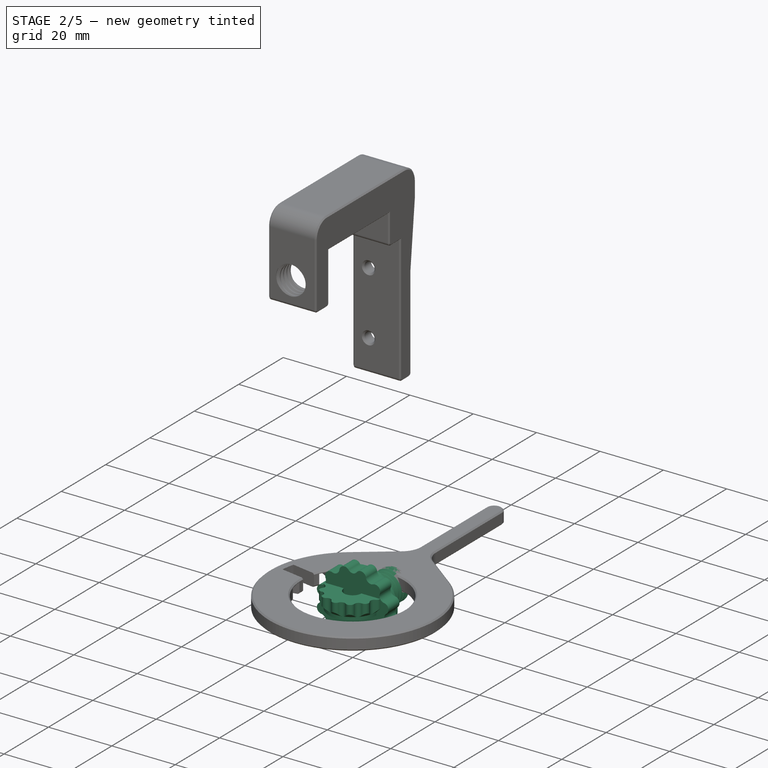
[diagram: stage 2 of 5 — iso view after this stage's code; geometry added in this stage tinted green]
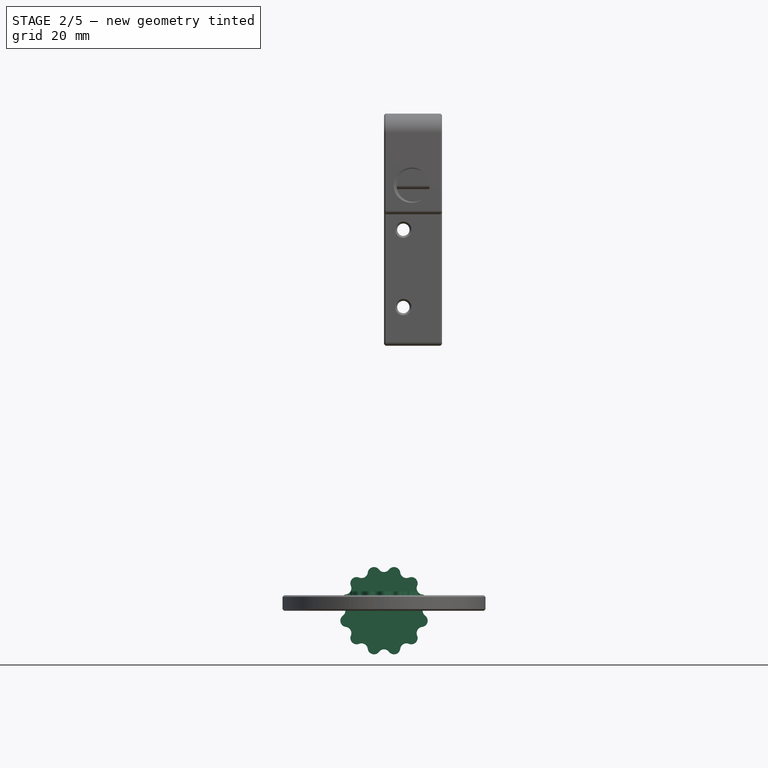
[diagram: stage 2 of 5 — front view after this stage's code; geometry added in this stage tinted green]
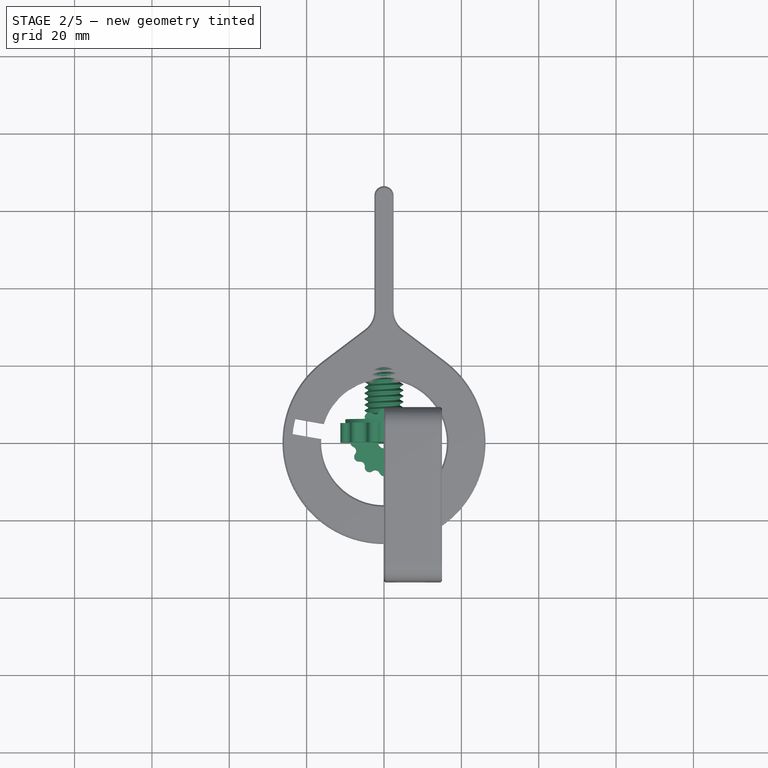
[diagram: stage 2 of 5 — top view after this stage's code; geometry added in this stage tinted green]
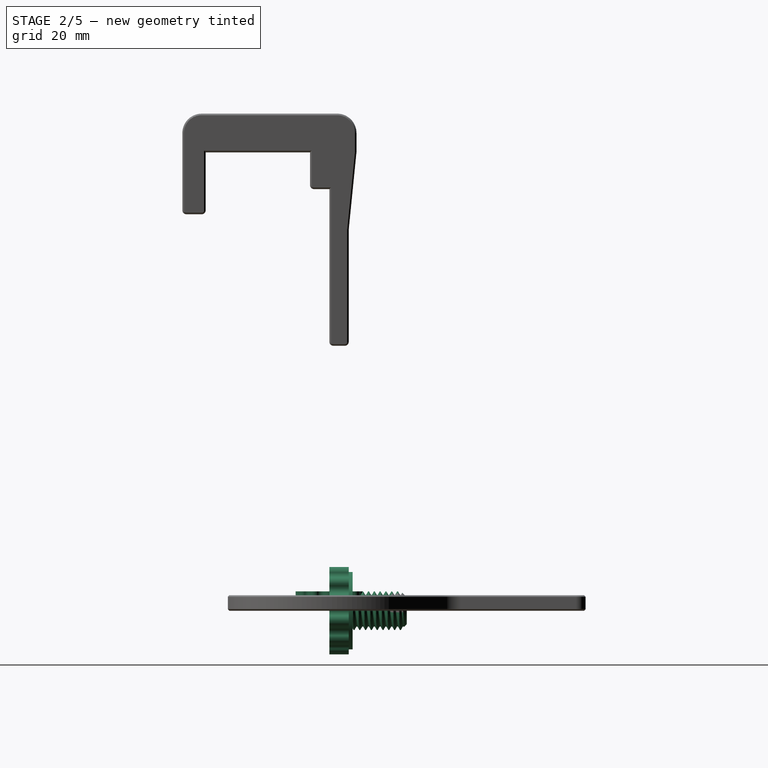
[diagram: stage 2 of 5 — right view after this stage's code; geometry added in this stage tinted green]
FEATURE [PartDesign::Body] Body001  label="rotor"
  AllowCompound = false
  Group = -> [Sketch013,Pad004,Sketch014,Pad005,Mirrored003,Fillet001,Fillet002,Chamfer001,Chamfer002,Chamfer003,Sketch015,Pocket007,Chamfer004]
  Origin = -> Origin001
  Tip = -> Chamfer004
FEATURE [Sketcher::SketchObject] Sketch016
  ArcFitTolerance = 1e-06
  AttachmentSupport = -> [XZ_Plane002]
  FullyConstrained = true
  MakeInternals = false
  MapMode = 5
  Placement = pos=(0,0,0) rot=(1,0,0;1.5708rad)
  sketch-geometry (1):
    g0: Circle CenterX=0 CenterY=0 CenterZ=0 NormalX=0 NormalY=0 NormalZ=1 AngleXU=0 Radius=10
  constraints (2):
    c: Coincident(g0,g-1)
    c: Diameter(g0) = 20
FEATURE [PartDesign::Pad] Pad006
  Direction = (0,-1,2e-16)
  Length = 6
  Length2 = 10
  Placement = pos=(0,0,0) rot=(1,0,0;1.5708rad)
  Profile = -> Sketch016
  ReferenceAxis = -> Sketch016 [N_Axis]
  Reversed = true
  Suppressed = false
  Type = 0
FEATURE [Sketcher::SketchObject] Sketch018
  ArcFitTolerance = 1e-06
  AttachmentSupport = -> [Pad006]
  ExternalGeometry = -> [Pad006]
  FullyConstrained = true
  MakeInternals = false
  MapMode = 5
  Placement = pos=(0,0,0) rot=(1,0,0;1.5708rad)
  sketch-geometry (6):
    g0: LineSegment [constr] StartX=0 StartY=0 StartZ=0 EndX=5 EndY=8.66025 EndZ=0
    g1: ArcOfCircle CenterX=0 CenterY=11.625 CenterZ=0 NormalX=0 NormalY=0 NormalZ=1 AngleXU=0 Radius=1.62504 StartAngle=4.71239 EndAngle=5.63362
    g2: ArcOfCircle CenterX=5.81252 CenterY=10.0676 CenterZ=0 NormalX=0 NormalY=0 NormalZ=1 AngleXU=0 Radius=1.62504 StartAngle=3.26756 EndAngle=4.18879
    g3: ArcOfCircle CenterX=2.58819 CenterY=9.65926 CenterZ=0 NormalX=0 NormalY=0 NormalZ=1 AngleXU=0 Radius=1.62504 StartAngle=0.125967 EndAngle=2.49203
    g4: LineSegment StartX=0 StartY=10 StartZ=0 EndX=5 EndY=8.66025 EndZ=0
    g5: LineSegment [constr] StartX=2.58819 StartY=9.65926 StartZ=0 EndX=2.5 EndY=9.33013 EndZ=0
  constraints (17):
    c: Coincident(g0,g-1)
    c: Angle(g0,g-2) = 0.523599
    c: PointOnObject(g1,g-2)
    c: PointOnObject(g1,g-3)
    c: PointOnObject(g2,g0)
    c: Tangent(g3,g1) = 1.5708
    c: Tangent(g3,g2) = 1.5708
    c: PointOnObject(g3,g-3)
    c: Coincident(g4,g1)
    c: Coincident(g4,g2)
    c: PointOnObject(g2,g-3)
    c: PointOnObject(g1,g-2)
    c: Coincident(g5,g3)
    c: Symmetric(g4,g4,g5)
    c: Perpendicular(g4,g5)
    c: Equal(g3,g2)
    c: Coincident(g0,g2)
FEATURE [PartDesign::Pad] Pad007
  BaseFeature = -> Pad006
  Direction = (0,-1,2e-16)
  Length = 5
  Length2 = 10
  Placement = pos=(0,0,0) rot=(1,0,0;1.5708rad)
  Profile = -> Sketch018
  ReferenceAxis = -> Sketch018 [N_Axis]
  Reversed = true
  Suppressed = false
  Type = 0
FEATURE [PartDesign::PolarPattern] PolarPattern
  Angle = 360
  Axis = -> Sketch018 [N_Axis]
  BaseFeature = -> Pad007
  Mode = 0
  Occurrences = 12
  Offset = 120
  Originals = -> [Pad007]
  Placement = pos=(0,0,0) rot=(1,0,0;1.5708rad)
  Suppressed = false
  TransformMode = 0
FEATURE [PartDesign::Body] Body005  label="cam-bracket"
  AllowCompound = false
  Group = -> [Sketch020,Pad009,Sketch021,Pocket008,Sketch022,Pocket009,Sketch023,Pocket010,Sketch024,Chamfer007,Chamfer008]
  Origin = -> Origin005
  Tip = -> Chamfer008
FEATURE [Sketcher::SketchObject] Sketch025
  ArcFitTolerance = 1e-06
  AttachmentSupport = -> [XY_Plane006]
  FullyConstrained = true
  MakeInternals = false
  MapMode = 5
  sketch-geometry (9):
    g0: ArcOfCircle [constr] CenterX=0 CenterY=0 CenterZ=0 NormalX=0 NormalY=0 NormalZ=1 AngleXU=0 Radius=7.5 StartAngle=1.8326 EndAngle=7.59218
    g1: LineSegment [constr] StartX=0 StartY=0 StartZ=0 EndX=1.94114 EndY=7.24444 EndZ=0
    g2: LineSegment [constr] StartX=0 StartY=0 StartZ=0 EndX=-1.94114 EndY=7.24444 EndZ=0
    g3: ArcOfCircle CenterX=-2.25659 CenterY=8.4217 CenterZ=0 NormalX=0 NormalY=0 NormalZ=1 AngleXU=0 Radius=1.21878 StartAngle=4.97419 EndAngle=5.89542
    g4: ArcOfCircle CenterX=2.25659 CenterY=8.4217 CenterZ=0 NormalX=0 NormalY=0 NormalZ=1 AngleXU=0 Radius=1.21878 StartAngle=3.52936 EndAngle=4.45059
    g5: ArcOfCircle CenterX=0 CenterY=7.5 CenterZ=0 NormalX=0 NormalY=0 NormalZ=1 AngleXU=0 Radius=1.21878 StartAngle=0.387767 EndAngle=2.75383
    g6: LineSegment [constr] StartX=-1.94114 StartY=7.24444 StartZ=0 EndX=-2.25659 EndY=8.4217 EndZ=0
    g7: LineSegment [constr] StartX=1.94114 StartY=7.24444 StartZ=0 EndX=2.25659 EndY=8.4217 EndZ=0
    g8: ArcOfCircle CenterX=1.3e-15 CenterY=6.1e-15 CenterZ=0 NormalX=0 NormalY=0 NormalZ=1 AngleXU=0 Radius=7.5 StartAngle=1.309 EndAngle=1.8326
  constraints (21):
    c: Coincident(g0,g-1)
    c: Coincident(g1,g0)
    c: Coincident(g2,g0)
    c: Coincident(g3,g2)
    c: Coincident(g4,g1)
    c: PointOnObject(g5,g-2)
    c: Coincident(g6,g3)
    c: Coincident(g7,g4)
    c: Tangent(g7,g1) = -1.5708
    c: Tangent(g6,g2) = -1.5708
    c: Equal(g3,g5)
    c: PointOnObject(g5,g0)
    c: Tangent(g5,g3) = 1.5708
    c: Tangent(g5,g4) = 1.5708
    c: Diameter(g0) = 15
    c: Coincident(g0,g4)
    c: Coincident(g0,g3)
    c: Coincident(g8,g0)
    c: Angle(g1,g-2) = 0.261799
    c: Angle(g-2,g2) = 0.261799
    c: Tangent(g8,g0) = -1.5708
FEATURE [Sketcher::SketchObject] Sketch026
  ArcFitTolerance = 1e-06
  AttachmentSupport = -> [XY_Plane006]
  FullyConstrained = true
  MakeInternals = false
  MapMode = 5
  sketch-geometry (2):
    g0: Circle CenterX=0 CenterY=0 CenterZ=0 NormalX=0 NormalY=0 NormalZ=1 AngleXU=0 Radius=7.5
    g1: Circle CenterX=0 CenterY=0 CenterZ=0 NormalX=0 NormalY=0 NormalZ=1 AngleXU=0 Radius=1.5
  constraints (4):
    c: Coincident(g0,g-1)
    c: Diameter(g0) = 15
    c: Coincident(g1,g0)
    c: Diameter(g1) = 3
FEATURE [PartDesign::Pad] Pad010
  Direction = (0,0,1)
  Length = 5
  Length2 = 10
  Profile = -> Sketch026
  ReferenceAxis = -> Sketch026 [N_Axis]
  Suppressed = false
  Type = 0
FEATURE [PartDesign::Pad] Pad011
  BaseFeature = -> Pad010
  Direction = (0,0,1)
  Length = 5
  Length2 = 10
  Profile = -> Sketch025
  ReferenceAxis = -> Sketch025 [N_Axis]
  Suppressed = false
  Type = 0
FEATURE [PartDesign::PolarPattern] PolarPattern001
  Angle = 360
  Axis = -> Sketch025 [N_Axis]
  BaseFeature = -> Pad011
  Mode = 0
  Occurrences = 12
  Offset = 120
  Originals = -> [Pad011]
  Suppressed = false
  TransformMode = 0
FEATURE [Sketcher::SketchObject] Sketch027
  ArcFitTolerance = 1e-06
  AttachmentSupport = -> [PolarPattern001]
  FullyConstrained = true
  MakeInternals = false
  MapMode = 5
  Placement = pos=(0,0,5) rot=(0,0,1;0rad)
  sketch-geometry (1):
    g0: Circle CenterX=0 CenterY=0 CenterZ=0 NormalX=0 NormalY=0 NormalZ=1 AngleXU=0 Radius=2.75
  constraints (2):
    c: Coincident(g0,g-1)
    c: Diameter(g0) = 5.5
FEATURE [PartDesign::Pocket] Pocket011
  BaseFeature = -> PolarPattern001
  Direction = (0,0,-1)
  Length = 4
  Length2 = 5
  Profile = -> Sketch027
  ReferenceAxis = -> Sketch027 [N_Axis]
  Suppressed = false
  Type = 0
FEATURE [Sketcher::SketchObject] Sketch028
  ArcFitTolerance = 1e-06
  AttachmentSupport = -> [XZ_Plane006]
  FullyConstrained = true
  MakeInternals = false
  MapMode = 5
  Placement = pos=(0,0,0) rot=(1,0,0;1.5708rad)
  sketch-geometry (4):
    g0: LineSegment StartX=7.5 StartY=0 StartZ=0 EndX=7.5 EndY=1 EndZ=0
    g1: LineSegment StartX=7.5 StartY=1 StartZ=0 EndX=9.5 EndY=3 EndZ=0
    g2: LineSegment StartX=9.5 StartY=3 StartZ=0 EndX=9.5 EndY=0 EndZ=0
    g3: LineSegment StartX=9.5 StartY=0 StartZ=0 EndX=7.5 EndY=0 EndZ=0
  constraints (12):
    c: PointOnObject(g0,g-1)
    c: Vertical(g0)
    c: Coincident(g0,g1)
    c: Coincident(g1,g2)
    c: PointOnObject(g2,g-1)
    c: Vertical(g2)
    c: Coincident(g2,g3)
    c: Coincident(g3,g0)
    c: Angle(g1,g2) = 0.785398
    c: DistanceX(g-1,g0) = 7.5
    c: DistanceX(g0,g2) = 2
    c: Distance(g0,g0) = 1
FEATURE [PartDesign::Groove] Groove
  Angle = 360
  Angle2 = 60
  Axis = (0,2e-16,1)
  Base = (0,0,0)
  BaseFeature = -> Pocket011
  Profile = -> Sketch028
  ReferenceAxis = -> Sketch028 [V_Axis]
  Suppressed = false
  Type = 0
FEATURE [PartDesign::Body] Body006  label="m3-shsc-thumbscrew"
  AllowCompound = false
  Group = -> [Sketch025,Sketch026,Pad010,Pad011,PolarPattern001,Sketch027,Pocket011,Sketch028,Groove]
  Origin = -> Origin006
  Tip = -> Groove
FEATURE [Sketcher::SketchObject] Sketch029
  ArcFitTolerance = 1e-06
  AttachmentSupport = -> [PolarPattern]
  ExternalGeometry = -> [PolarPattern]
  FullyConstrained = true
  MakeInternals = false
  MapMode = 5
  Placement = pos=(0,6,0) rot=(-1,0,0;1.5708rad)
  sketch-geometry (1):
    g0: Circle CenterX=0 CenterY=0 CenterZ=0 NormalX=0 NormalY=0 NormalZ=1 AngleXU=0 Radius=3.3
  constraints (2):
    c: Coincident(g0,g-1)
    c: Diameter(g0) = 6.6
FEATURE [PartDesign::Pad] Pad012
  BaseFeature = -> PolarPattern
  Direction = (0,1,2e-16)
  Length = 2.5
  Length2 = 10
  Placement = pos=(0,0,0) rot=(1,0,0;1.5708rad)
  Profile = -> Sketch029
  ReferenceAxis = -> Sketch029 [N_Axis]
  Suppressed = false
  Type = 0
FEATURE [Sketcher::SketchObject] Sketch035
  ArcFitTolerance = 1e-06
  AttachmentSupport = -> [XZ_Plane010]
  FullyConstrained = true
  MakeInternals = false
  MapMode = 5
  Placement = pos=(0,0,0) rot=(1,0,0;1.5708rad)
  sketch-geometry (1):
    g0: Circle CenterX=0 CenterY=0 CenterZ=0 NormalX=0 NormalY=0 NormalZ=1 AngleXU=0 Radius=10
  constraints (2):
    c: Coincident(g0,g-1)
    c: Diameter(g0) = 20
FEATURE [PartDesign::Pad] Pad015
  Direction = (0,-1,2e-16)
  Length = 6
  Length2 = 10
  Placement = pos=(0,0,0) rot=(1,0,0;1.5708rad)
  Profile = -> Sketch035
  ReferenceAxis = -> Sketch035 [N_Axis]
  Reversed = true
  Suppressed = false
  Type = 0
FEATURE [Sketcher::SketchObject] Sketch036
  ArcFitTolerance = 1e-06
  AttachmentSupport = -> [XZ_Plane010]
  FullyConstrained = true
  MakeInternals = false
  MapMode = 5
  Placement = pos=(0,0,0) rot=(1,0,0;1.5708rad)
  sketch-geometry (1):
    g0: Circle CenterX=0 CenterY=0 CenterZ=0 NormalX=0 NormalY=0 NormalZ=1 AngleXU=0 Radius=3
  constraints (2):
    c: Coincident(g0,g-1)
    c: Diameter(g0) = 6
FEATURE [Sketcher::SketchObject] Sketch037
  ArcFitTolerance = 1e-06
  AttachmentSupport = -> [Pad015]
  ExternalGeometry = -> [Pad015]
  FullyConstrained = true
  MakeInternals = false
  MapMode = 5
  Placement = pos=(0,0,0) rot=(1,0,0;1.5708rad)
  sketch-geometry (6):
    g0: LineSegment [constr] StartX=0 StartY=0 StartZ=0 EndX=5 EndY=8.66025 EndZ=0
    g1: ArcOfCircle CenterX=0 CenterY=11.625 CenterZ=0 NormalX=0 NormalY=0 NormalZ=1 AngleXU=0 Radius=1.62504 StartAngle=4.71239 EndAngle=5.63362
    g2: ArcOfCircle CenterX=5.81252 CenterY=10.0676 CenterZ=0 NormalX=0 NormalY=0 NormalZ=1 AngleXU=0 Radius=1.62504 StartAngle=3.26756 EndAngle=4.18879
    g3: ArcOfCircle CenterX=2.58819 CenterY=9.65926 CenterZ=0 NormalX=0 NormalY=0 NormalZ=1 AngleXU=0 Radius=1.62504 StartAngle=0.125967 EndAngle=2.49203
    g4: LineSegment StartX=0 StartY=10 StartZ=0 EndX=5 EndY=8.66025 EndZ=0
    g5: LineSegment [constr] StartX=2.58819 StartY=9.65926 StartZ=0 EndX=2.5 EndY=9.33013 EndZ=0
  constraints (17):
    c: Coincident(g0,g-1)
    c: Angle(g0,g-2) = 0.523599
    c: PointOnObject(g1,g-2)
    c: PointOnObject(g1,g-3)
    c: PointOnObject(g2,g0)
    c: Tangent(g3,g1) = 1.5708
    c: Tangent(g3,g2) = 1.5708
    c: PointOnObject(g3,g-3)
    c: Coincident(g4,g1)
    c: Coincident(g4,g2)
    c: PointOnObject(g2,g-3)
    c: PointOnObject(g1,g-2)
    c: Coincident(g5,g3)
    c: Symmetric(g4,g4,g5)
    c: Perpendicular(g4,g5)
    c: Equal(g3,g2)
    c: Coincident(g0,g2)
FEATURE [PartDesign::Pad] Pad016
  BaseFeature = -> Pad015
  Direction = (0,-1,2e-16)
  Length = 5
  Length2 = 10
  Placement = pos=(0,0,0) rot=(1,0,0;1.5708rad)
  Profile = -> Sketch037
  ReferenceAxis = -> Sketch037 [N_Axis]
  Reversed = true
  Suppressed = false
  Type = 0
FEATURE [PartDesign::PolarPattern] PolarPattern002
  Angle = 360
  Axis = -> Sketch037 [N_Axis]
  BaseFeature = -> Pad016
  Mode = 0
  Occurrences = 12
  Offset = 120
  Originals = -> [Pad016]
  Placement = pos=(0,0,0) rot=(1,0,0;1.5708rad)
  Suppressed = false
  TransformMode = 0
FEATURE [Sketcher::SketchObject] Sketch038
  ArcFitTolerance = 1e-06
  AttachmentSupport = -> [PolarPattern002]
  ExternalGeometry = -> [PolarPattern002]
  FullyConstrained = true
  MakeInternals = false
  MapMode = 5
  Placement = pos=(0,6,0) rot=(-1,0,0;1.5708rad)
  sketch-geometry (1):
    g0: Circle CenterX=0 CenterY=0 CenterZ=0 NormalX=0 NormalY=0 NormalZ=1 AngleXU=0 Radius=3.3
  constraints (2):
    c: Coincident(g0,g-1)
    c: Diameter(g0) = 6.6
FEATURE [PartDesign::Body] Body010  label="thumb-top-bracket"
  AllowCompound = false
  Group = -> [Sketch035,Pad015,Sketch036,Sketch037,Pad016,PolarPattern002,Sketch038]
  Origin = -> Origin010
  Tip = -> PolarPattern002
FEATURE [Part::FeaturePython] ThreadedRod  label="M10x20-ThreadedRod"  # WARN: FeaturePython — macro-defined, semantics opaque (R4)
  Diameter = 10
  DiameterCustom = 6
  Invert = false
  LeftHanded = false
  Length = 20
  MatchOuter = false
  OffsetAngle = 0
  PitchCustom = 1
  Placement = pos=(0,0,0) rot=(1,0,0;1.5708rad)
  Thread = true
  Type = 4
FEATURE [Part::MultiFuse] Fusion001  label="top-bracket-thumbscrew"
  Refine = true
  Shapes = -> [Body010,ThreadedRod]
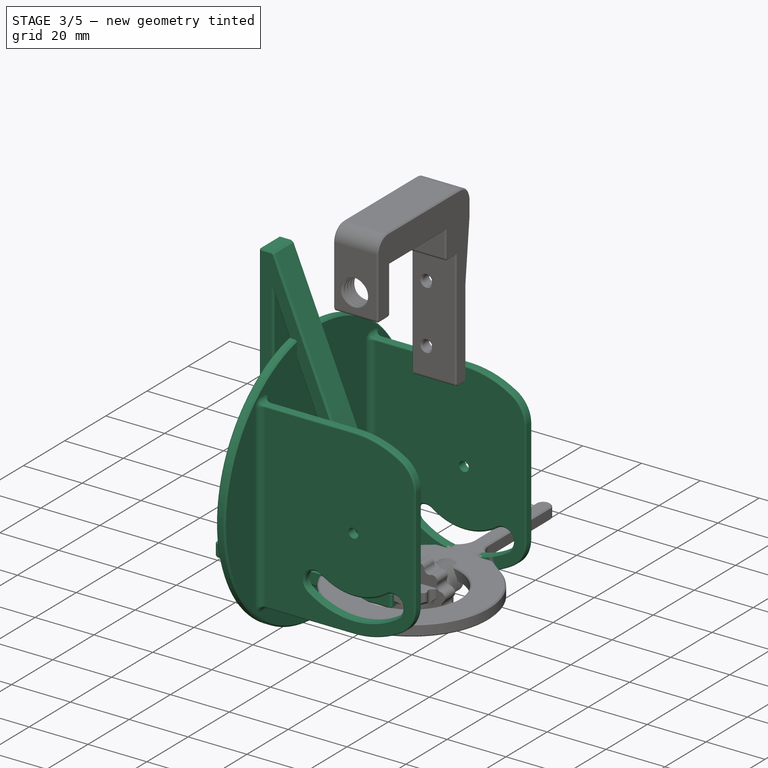
[diagram: stage 3 of 5 — iso view after this stage's code; geometry added in this stage tinted green]
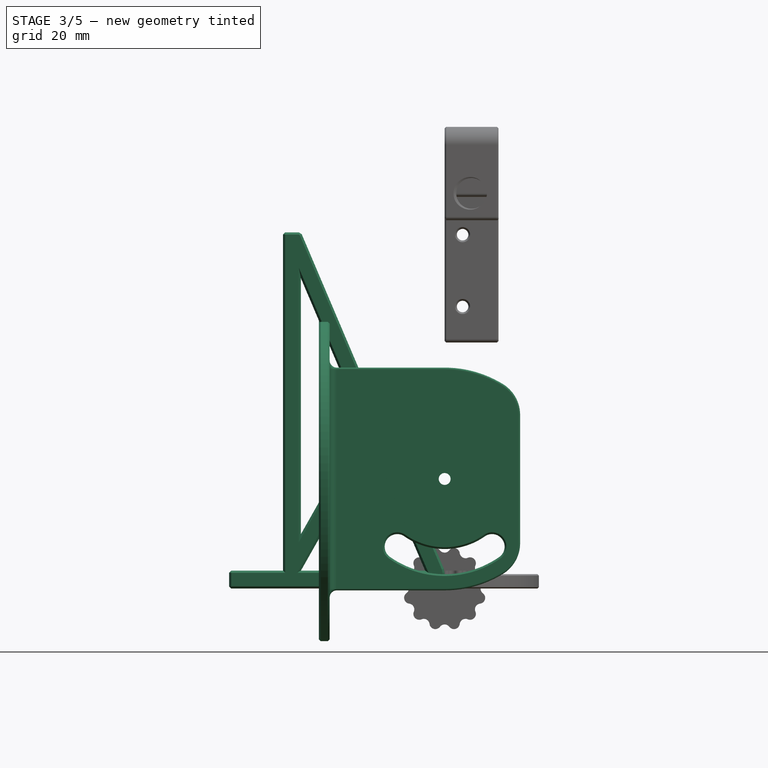
[diagram: stage 3 of 5 — front view after this stage's code; geometry added in this stage tinted green]
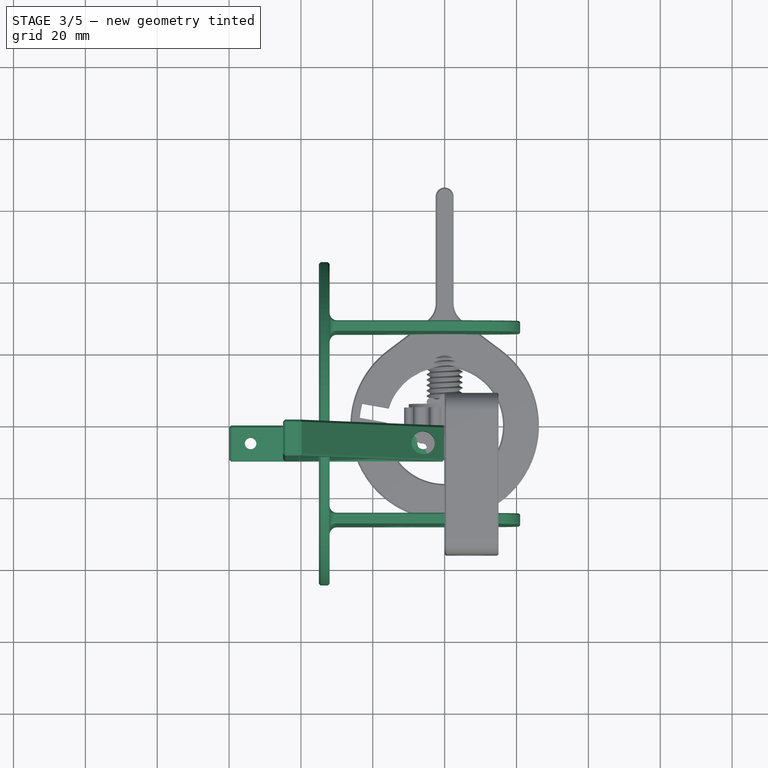
[diagram: stage 3 of 5 — top view after this stage's code; geometry added in this stage tinted green]
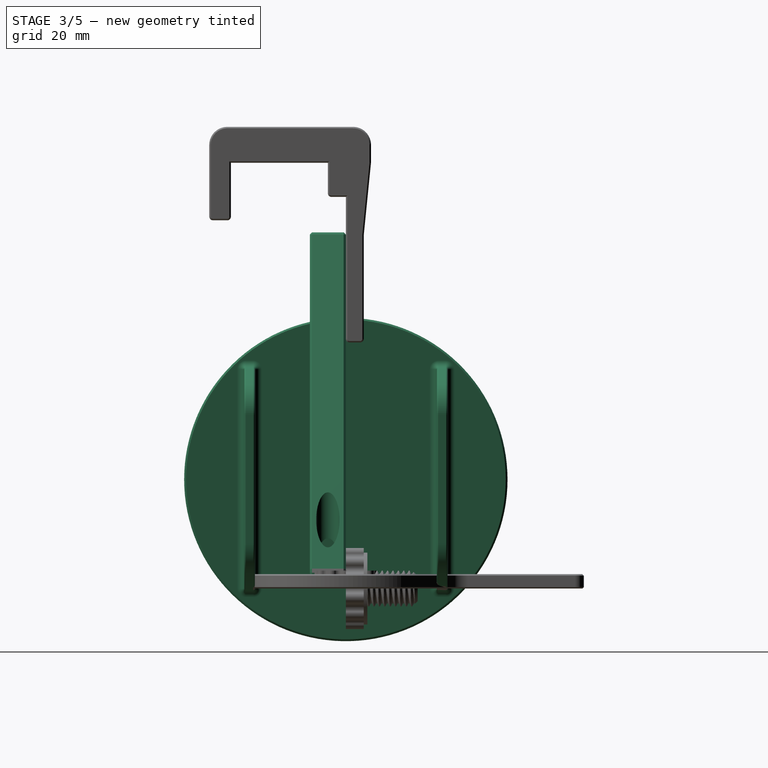
[diagram: stage 3 of 5 — right view after this stage's code; geometry added in this stage tinted green]
FEATURE [PartDesign::Body] Body
  AllowCompound = false
  Group = -> [Sketch001,Pad,Sketch,Pad001,DatumPlane,Sketch002,Pocket,Pocket001,Mirrored,Sketch004,Sketch005,Sketch003,Pocket002,Mirrored001,Sketch006,Pad002,DatumPlane001,Sketch007,Pad003,Sketch008,Pocket003,Sketch009,Pocket004,Mirrored002,Sketch010,Sketch011,Pocket005,Pocket006,MultiTransform,LinearPattern,LinearPattern001,MultiTransform001,LinearPattern002,LinearPattern003,Fillet,Chamfer]
  Origin = -> Origin
  Tip = -> Chamfer
FEATURE [Sketcher::SketchObject] Sketch013
  ArcFitTolerance = 1e-06
  AttachmentOffset = pos=(0,0,-35) rot=(0,0,1;0rad)
  AttachmentSupport = -> [YZ_Plane001]
  FullyConstrained = false
  MakeInternals = false
  MapMode = 5
  Placement = pos=(-35,0,0) rot=(0.57735,0.57735,0.57735;2.0944rad)
  expr: .AttachmentOffset.Base.z = -(Spreadsheet.rot_side_center_height + Spreadsheet.rot_bottom_thickness)
  expr: Constraints[1] = Spreadsheet.rot_dia
  sketch-geometry (1):
    g0: Circle CenterX=0 CenterY=30.3506 CenterZ=0 NormalX=0 NormalY=0 NormalZ=1 AngleXU=0 Radius=45
  constraints (2):
    c: PointOnObject(g0,g-2)
    c: Diameter(g0) = 90
FEATURE [PartDesign::Pad] Pad004  label="bottom_pad"
  Direction = (1,0,0)
  Length = 3
  Length2 = 10
  Placement = pos=(0,0,0) rot=(1,1,1;2.0944rad)
  Profile = -> Sketch013
  ReferenceAxis = -> Sketch013 [N_Axis]
  Suppressed = false
  Type = 0
  expr: Length = Spreadsheet.rot_bottom_thickness
FEATURE [Sketcher::SketchObject] Sketch014  label="side_sketch"
  ArcFitTolerance = 1e-06
  AttachmentOffset = pos=(0,0,-25.3) rot=(0,0,1;0rad)
  AttachmentSupport = -> [XZ_Plane001]
  FullyConstrained = true
  MakeInternals = false
  MapMode = 5
  Placement = pos=(0,25.3,-5.6e-15) rot=(1,0,0;1.5708rad)
  expr: .AttachmentOffset.Base.z = -(Spreadsheet.cam_full_width / 2 + Spreadsheet.tolerance)
  expr: Constraints[17] = Spreadsheet.cam_screw_dia / 2
  expr: Constraints[25] = Spreadsheet.cam_elevation_dist + Spreadsheet.screw_edge_dist
  expr: Constraints[26] = Spreadsheet.rot_side_width
  expr: Constraints[27] = Spreadsheet.cam_elevation_dist
  expr: Constraints[28] = Spreadsheet.rot_side_center_height
  expr: Constraints[39] = Spreadsheet.rot_side_height
  sketch-geometry (16):
    g0: LineSegment StartX=-32 StartY=61.5 StartZ=0 EndX=0 EndY=61.5 EndZ=0
    g1: ArcOfCircle CenterX=0 CenterY=30.5 CenterZ=0 NormalX=0 NormalY=0 NormalZ=1 AngleXU=0 Radius=31 StartAngle=4.71239 EndAngle=5.26371
    g2: LineSegment StartX=-5.7e-15 StartY=-0.5 StartZ=0 EndX=-32 EndY=-0.5 EndZ=0
    g3: LineSegment StartX=-32 StartY=-0.5 StartZ=0 EndX=-32 EndY=61.5 EndZ=0
    g4: LineSegment [constr] StartX=1.9e-15 StartY=61.5 StartZ=0 EndX=-5.7e-15 EndY=-0.5 EndZ=0
    g5: Circle CenterX=0 CenterY=30.5 CenterZ=0 NormalX=0 NormalY=0 NormalZ=1 AngleXU=0 Radius=1.65
    g6: ArcOfCircle CenterX=0 CenterY=30.5 CenterZ=0 NormalX=0 NormalY=0 NormalZ=1 AngleXU=0 Radius=26.5 StartAngle=4.10152 EndAngle=5.32325
    g7: ArcOfCircle CenterX=13.1923 CenterY=11.6595 CenterZ=0 NormalX=0 NormalY=0 NormalZ=1 AngleXU=0 Radius=3.5 StartAngle=5.32325 EndAngle=8.46485
    g8: ArcOfCircle CenterX=-13.1923 CenterY=11.6595 CenterZ=0 NormalX=0 NormalY=0 NormalZ=1 AngleXU=0 Radius=3.5 StartAngle=0.959931 EndAngle=4.10152
    g9: ArcOfCircle CenterX=0 CenterY=30.5 CenterZ=0 NormalX=0 NormalY=0 NormalZ=1 AngleXU=0 Radius=19.5 StartAngle=4.10152 EndAngle=5.32325
    g10: LineSegment [constr] StartX=0 StartY=30.5 StartZ=0 EndX=-13.1923 EndY=11.6595 EndZ=0
    g11: LineSegment [constr] StartX=0 StartY=30.5 StartZ=0 EndX=13.1923 EndY=11.6595 EndZ=0
    g12: LineSegment StartX=21 StartY=48.3885 StartZ=0 EndX=21 EndY=12.6115 EndZ=0
    g13: ArcOfCircle CenterX=0 CenterY=30.5 CenterZ=0 NormalX=0 NormalY=0 NormalZ=1 AngleXU=0 Radius=31 StartAngle=1.01948 EndAngle=1.5708
    g14: ArcOfCircle CenterX=11 CenterY=48.3885 CenterZ=0 NormalX=0 NormalY=0 NormalZ=1 AngleXU=0 Radius=10 StartAngle=0 EndAngle=1.01948
    g15: ArcOfCircle CenterX=11 CenterY=12.6115 CenterZ=0 NormalX=0 NormalY=0 NormalZ=1 AngleXU=0 Radius=10 StartAngle=5.26371 EndAngle=6.28319
  constraints (40):
    c: Coincident(g0,g13) = 1.5708
    c: Tangent(g1,g2) = 1.5708
    c: Coincident(g2,g3)
    c: Coincident(g3,g0)
    c: Vertical(g3)
    c: Horizontal(g0)
    c: Horizontal(g2)
    c: Coincident(g4,g0)
    c: Coincident(g4,g1)
    c: Coincident(g5,g1)
    c: Diameter(g5) = 3.3
    c: Coincident(g6,g9)
    c: Tangent(g9,g8) = 1.5708
    c: Tangent(g9,g7) = 1.5708
    c: Tangent(g6,g8) = -1.5708
    c: Tangent(g6,g7) = -1.5708
    c: Coincident(g6,g1)
    c: Radius(g7) = 3.5
    c: Coincident(g10,g1)
    c: Coincident(g10,g8)
    c: Coincident(g11,g1)
    c: Coincident(g11,g7)
    c: Angle(g10,g4) = 0.610865
    c: Angle(g4,g11) = 0.610865
    c: PointOnObject(g1,g-2)
    c: DistanceY(g-1,g1) = 30.5
    c: DistanceY(g3,g3) = 62
    c: Distance(g11,g11) = 23
    c: DistanceX(g0,g0) = 32
    c: Vertical(g12)
    c: Equal(g1,g13)
    c: Coincident(g1,g13)
    c: Tangent(g13,g14) = -1.5708
    c: Tangent(g12,g14) = 1.5708
    c: Tangent(g12,g15) = 1.5708
    c: Tangent(g1,g15) = -1.5708
    c: Equal(g15,g14)
    c: Radius(g14) = 10
    c: PointOnObject(g0,g-2)
    c: DistanceX(g0,g12) = 53
FEATURE [PartDesign::Pad] Pad005  label="side_pad"
  BaseFeature = -> Pad004
  Direction = (0,-1,2e-16)
  Length = 3
  Length2 = 10
  Placement = pos=(0,0,0) rot=(1,1,1;2.0944rad)
  Profile = -> Sketch014
  ReferenceAxis = -> Sketch014 [N_Axis]
  Reversed = true
  Suppressed = false
  Type = 0
  expr: Length = Spreadsheet.rot_side_thickness
FEATURE [PartDesign::Mirrored] Mirrored003
  BaseFeature = -> Pad005
  MirrorPlane = -> XZ_Plane001
  Originals = -> [Pad005]
  Placement = pos=(0,0,0) rot=(1,1,1;2.0944rad)
  Suppressed = false
  TransformMode = 0
FEATURE [PartDesign::Fillet] Fillet001
  Base = -> Mirrored003 [Edge38,Edge52,Edge13,Edge14]
  BaseFeature = -> Mirrored003
  Placement = pos=(0,0,0) rot=(1,1,1;2.0944rad)
  Radius = 0.5
  SupportTransform = false
  Suppressed = false
  UseAllEdges = false
FEATURE [PartDesign::Fillet] Fillet002
  Base = -> Fillet001 [Edge17,Edge4]
  BaseFeature = -> Fillet001
  Placement = pos=(0,0,0) rot=(1,1,1;2.0944rad)
  Radius = 2
  SupportTransform = false
  Suppressed = false
  UseAllEdges = false
FEATURE [PartDesign::Chamfer] Chamfer001
  Angle = 45
  Base = -> Fillet002 [Edge9,Edge35]
  BaseFeature = -> Fillet002
  ChamferType = 0
  FlipDirection = false
  Placement = pos=(0,0,0) rot=(1,1,1;2.0944rad)
  Size = 0.5
  Size2 = 1
  SupportTransform = false
  Suppressed = false
  UseAllEdges = false
FEATURE [PartDesign::Chamfer] Chamfer002
  Angle = 45
  Base = -> Chamfer001 [Edge63,Edge85,Edge119,Edge97]
  BaseFeature = -> Chamfer001
  ChamferType = 0
  FlipDirection = false
  Placement = pos=(0,0,0) rot=(1,1,1;2.0944rad)
  Size = 0.5
  Size2 = 1
  SupportTransform = false
  Suppressed = false
  UseAllEdges = false
FEATURE [PartDesign::Body] Body004  label="rotor-base"
  AllowCompound = false
  Group = -> [Sketch019,Binder,Pad008,Fillet003,Chamfer005,Chamfer006,Binder001]
  Origin = -> Origin004
  Tip = -> Chamfer006
FEATURE [Sketcher::SketchObject] Sketch020
  ArcFitTolerance = 1e-06
  AttachmentSupport = -> [XZ_Plane005]
  FullyConstrained = true
  MakeInternals = false
  MapMode = 5
  Placement = pos=(0,0,0) rot=(1,0,0;1.5708rad)
  expr: Constraints[19] = Spreadsheet.bracket_strut_thickness
  expr: Constraints[42] = Spreadsheet.bracket_top
  expr: Constraints[43] = Spreadsheet.bracket_height
  expr: Constraints[46] = Spreadsheet.rot_base_width + Spreadsheet.tolerance
  sketch-geometry (18):
    g0: LineSegment StartX=-60 StartY=0 StartZ=0 EndX=0 EndY=0 EndZ=0
    g1: LineSegment StartX=0 StartY=0 StartZ=0 EndX=0 EndY=5 EndZ=0
    g2: LineSegment StartX=0 StartY=5 StartZ=0 EndX=-40 EndY=99.15 EndZ=0
    g3: LineSegment StartX=-40 StartY=99.15 StartZ=0 EndX=-45 EndY=99.15 EndZ=0
    g4: LineSegment StartX=-45 StartY=99.15 StartZ=0 EndX=-45 EndY=5 EndZ=0
    g5: LineSegment StartX=-45 StartY=5 StartZ=0 EndX=-60 EndY=5 EndZ=0
    g6: LineSegment StartX=-60 StartY=5 StartZ=0 EndX=-60 EndY=0 EndZ=0
    g7: LineSegment StartX=-40 StartY=5 StartZ=0 EndX=-5.43254 EndY=5 EndZ=0
    g8: LineSegment StartX=-40 StartY=5 StartZ=0 EndX=-20.2529 EndY=39.8835 EndZ=0
    g9: LineSegment StartX=-40 StartY=15.1496 StartZ=0 EndX=-22.7163 EndY=45.6816 EndZ=0
    g10: LineSegment [constr] StartX=-45 StartY=5 StartZ=0 EndX=-40 EndY=5 EndZ=0
    g11: LineSegment [constr] StartX=-5.43254 StartY=5 StartZ=0 EndX=-0.830646 EndY=6.95513 EndZ=0
    g12: LineSegment [constr] StartX=-40 StartY=15.1496 StartZ=0 EndX=-35.6488 EndY=12.6865 EndZ=0
    g13: LineSegment StartX=-40 StartY=86.3632 StartZ=0 EndX=-40 EndY=15.1496 EndZ=0
    g14: LineSegment [constr] StartX=-40 StartY=15.1496 StartZ=0 EndX=-40 EndY=5 EndZ=0
    g15: LineSegment StartX=-22.7163 StartY=45.6816 StartZ=0 EndX=-40 EndY=86.3632 EndZ=0
    g16: LineSegment StartX=-5.43254 StartY=5 StartZ=0 EndX=-20.2529 EndY=39.8835 EndZ=0
    g17: LineSegment [constr] StartX=-20.2529 StartY=39.8835 StartZ=0 EndX=-22.7163 EndY=45.6816 EndZ=0
  constraints (49):
    c: Horizontal(g0)
    c: Coincident(g0,g1)
    c: Coincident(g2,g3)
    c: Horizontal(g3)
    c: Coincident(g3,g4)
    c: Vertical(g4)
    c: Coincident(g4,g5)
    c: Horizontal(g5)
    c: Coincident(g5,g6)
    c: Coincident(g6,g0)
    c: Horizontal(g7)
    c: Coincident(g7,g16)
    c: Coincident(g15,g13)
    c: Coincident(g14,g7)
    c: Vertical(g6)
    c: Coincident(g8,g7)
    c: Parallel(g8,g9)
    c: Horizontal(g1,g7)
    c: Horizontal(g7,g4)
    c: DistanceY(g6,g6) = 5
    c: Coincident(g10,g4)
    c: Coincident(g10,g7)
    c: Coincident(g11,g7)
    c: PointOnObject(g11,g2)
    c: Coincident(g12,g9)
    c: PointOnObject(g12,g8)
    c: Perpendicular(g2,g11)
    c: Perpendicular(g8,g12)
    c: Equal(g6,g10)
    c: Equal(g10,g12)
    c: Equal(g12,g11)
    c: Coincident(g13,g14)
    c: Vertical(g13)
    c: Vertical(g14)
    c: Coincident(g17,g15)
    c: PointOnObject(g8,g15)
    c: Parallel(g15,g2)
    c: Coincident(g16,g17)
    c: Coincident(g15,g9)
    c: Coincident(g16,g8)
    c: Coincident(g13,g9)
    c: Symmetric(g7,g13,g9)
    c: DistanceX(g5,g5) = 15
    c: DistanceX(g0,g0) = 60
    c: Vertical(g1)
    c: Coincident(g1,g2)
    c: DistanceY(g4,g4) = 94.15
    c: Coincident(g0,g-1)
    c: Equal(g3,g6)
FEATURE [PartDesign::Pad] Pad009
  Direction = (0,-1,2e-16)
  Length = 10
  Length2 = 10
  Placement = pos=(0,0,0) rot=(1,0,0;1.5708rad)
  Profile = -> Sketch020
  ReferenceAxis = -> Sketch020 [N_Axis]
  Suppressed = false
  Type = 0
  expr: Length = Spreadsheet.bracket_width
FEATURE [Sketcher::SketchObject] Sketch021
  ArcFitTolerance = 1e-06
  AttachmentSupport = -> [Pad009]
  ExternalGeometry = -> [Pad009]
  FullyConstrained = true
  MakeInternals = false
  MapMode = 5
  Placement = pos=(-45,0,0) rot=(0.707107,0,-0.707107;3.14159rad)
  expr: Constraints[5] = Spreadsheet.rot_base_screw_offset
  expr: Constraints[6] = Spreadsheet.rot_base_width - 2 * Spreadsheet.rot_base_screw_offset
  sketch-geometry (3):
    g0: LineSegment [constr] StartX=-99.15 StartY=5 StartZ=0 EndX=-5 EndY=5 EndZ=0
    g1: Circle CenterX=-89.15 CenterY=5 CenterZ=0 NormalX=0 NormalY=0 NormalZ=1 AngleXU=0 Radius=2.35
    g2: Circle CenterX=-15.15 CenterY=5 CenterZ=0 NormalX=0 NormalY=0 NormalZ=1 AngleXU=0 Radius=2.35
  constraints (8):
    c: Symmetric(g-3,g-3,g0)
    c: Symmetric(g-4,g-4,g0)
    c: PointOnObject(g1,g0)
    c: PointOnObject(g2,g0)
    c: Equal(g2,g1)
    c: DistanceX(g0,g1) = 10
    c: DistanceX(g1,g2) = 74
    c: Diameter(g1) = 4.7
FEATURE [PartDesign::Pocket] Pocket008
  BaseFeature = -> Pad009
  Direction = (1,0,2e-16)
  Length = 5
  Length2 = 5
  Placement = pos=(0,0,0) rot=(1,0,0;1.5708rad)
  Profile = -> Sketch021
  ReferenceAxis = -> Sketch021 [N_Axis]
  Suppressed = false
  Type = 0
FEATURE [Sketcher::SketchObject] Sketch022
  ArcFitTolerance = 1e-06
  AttachmentSupport = -> [Pocket008]
  ExternalGeometry = -> [Pocket008]
  FullyConstrained = true
  MakeInternals = false
  MapMode = 5
  Placement = pos=(0,0,0) rot=(1,0,0;3.14159rad)
  sketch-geometry (4):
    g0: LineSegment [constr] StartX=-60 StartY=5 StartZ=0 EndX=0 EndY=5 EndZ=0
    g1: LineSegment [constr] StartX=-30 StartY=10 StartZ=0 EndX=-30 EndY=0 EndZ=0
    g2: Circle CenterX=-54 CenterY=5 CenterZ=0 NormalX=0 NormalY=0 NormalZ=1 AngleXU=0 Radius=1.6
    g3: Circle CenterX=-6 CenterY=5 CenterZ=0 NormalX=0 NormalY=0 NormalZ=1 AngleXU=0 Radius=1.6
  constraints (10):
    c: Symmetric(g-3,g-3,g0)
    c: Symmetric(g-4,g-4,g0)
    c: Symmetric(g-5,g-5,g1)
    c: Symmetric(g-6,g-6,g1)
    c: PointOnObject(g2,g0)
    c: Symmetric(g2,g3,g1)
    c: Equal(g2,g3)
    c: Diameter(g2) = 3.2
    c: DistanceX(g0,g2) = 6
    c: DistanceX(g2,g3) = 48
FEATURE [PartDesign::Pocket] Pocket009
  BaseFeature = -> Pocket008
  Direction = (0,0,1)
  Length = 5
  Length2 = 5
  Placement = pos=(0,0,0) rot=(1,0,0;1.5708rad)
  Profile = -> Sketch022
  ReferenceAxis = -> Sketch022 [N_Axis]
  Suppressed = false
  Type = 1
FEATURE [Sketcher::SketchObject] Sketch023
  ArcFitTolerance = 1e-06
  AttachmentOffset = pos=(0,0,-4) rot=(0,0,1;0rad)
  AttachmentSupport = -> [Sketch022]
  ExternalGeometry = -> [Sketch022]
  FullyConstrained = true
  MakeInternals = false
  MapMode = 2
  Placement = pos=(0,0,4) rot=(1,0,0;3.14159rad)
  sketch-geometry (2):
    g0: Circle CenterX=-54 CenterY=5 CenterZ=0 NormalX=0 NormalY=0 NormalZ=1 AngleXU=0 Radius=3.25
    g1: Circle CenterX=-6 CenterY=5 CenterZ=0 NormalX=0 NormalY=0 NormalZ=1 AngleXU=0 Radius=3.25
  constraints (4):
    c: Coincident(g0,g-3)
    c: Coincident(g1,g-4)
    c: Equal(g1,g0)
    c: Diameter(g0) = 6.5
FEATURE [PartDesign::Pocket] Pocket010
  BaseFeature = -> Pocket009
  Direction = (0,0,1)
  Length = 5
  Length2 = 5
  Placement = pos=(0,0,0) rot=(1,0,0;1.5708rad)
  Profile = -> Sketch023
  ReferenceAxis = -> Sketch023 [N_Axis]
  Suppressed = false
  Type = 1
FEATURE [Sketcher::SketchObject] Sketch024
  ArcFitTolerance = 1e-06
  AttachmentSupport = -> [Pocket010]
  ExternalGeometry = -> [Pocket010]
  FullyConstrained = true
  MakeInternals = false
  MapMode = 5
  Placement = pos=(0,1.1e-15,5) rot=(0,0,1;3.14159rad)
  constraints (1):
    c: DistanceX(g-3,g-4) = 5.75
FEATURE [PartDesign::Chamfer] Chamfer007
  Angle = 45
  Base = -> Pocket010 [Face3,Face4,Face10,Face2,Face5]
  BaseFeature = -> Pocket010
  ChamferType = 0
  FlipDirection = false
  Placement = pos=(0,0,0) rot=(1,0,0;1.5708rad)
  Size = 0.6
  Size2 = 1
  SupportTransform = false
  Suppressed = false
  UseAllEdges = false
FEATURE [PartDesign::Chamfer] Chamfer008
  Angle = 45
  Base = -> Chamfer007 [Edge130,Edge131]
  BaseFeature = -> Chamfer007
  ChamferType = 0
  FlipDirection = false
  Placement = pos=(0,0,0) rot=(1,0,0;1.5708rad)
  Size = 0.4
  Size2 = 1
  SupportTransform = false
  Suppressed = false
  UseAllEdges = false
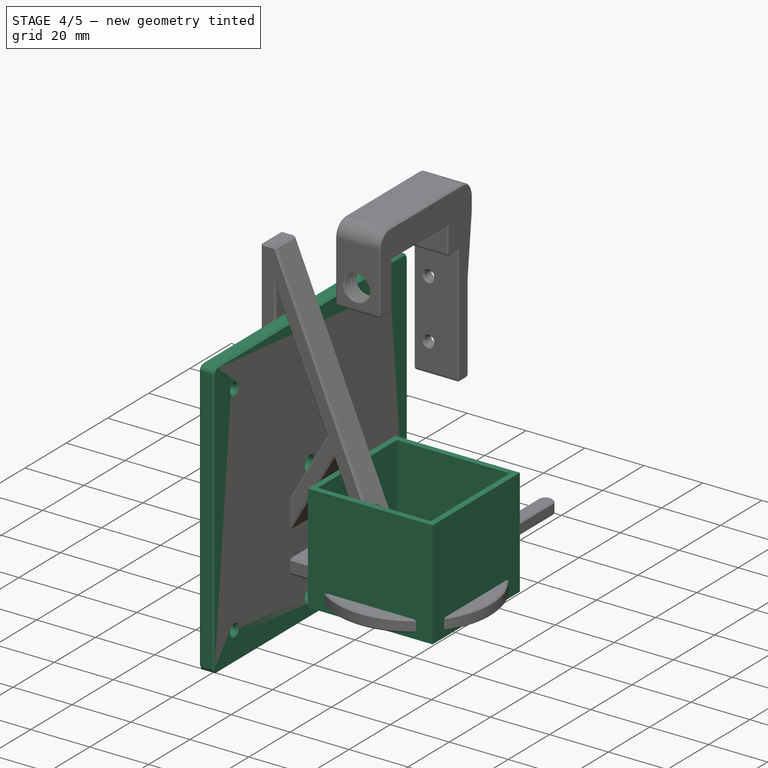
[diagram: stage 4 of 5 — iso view after this stage's code; geometry added in this stage tinted green]
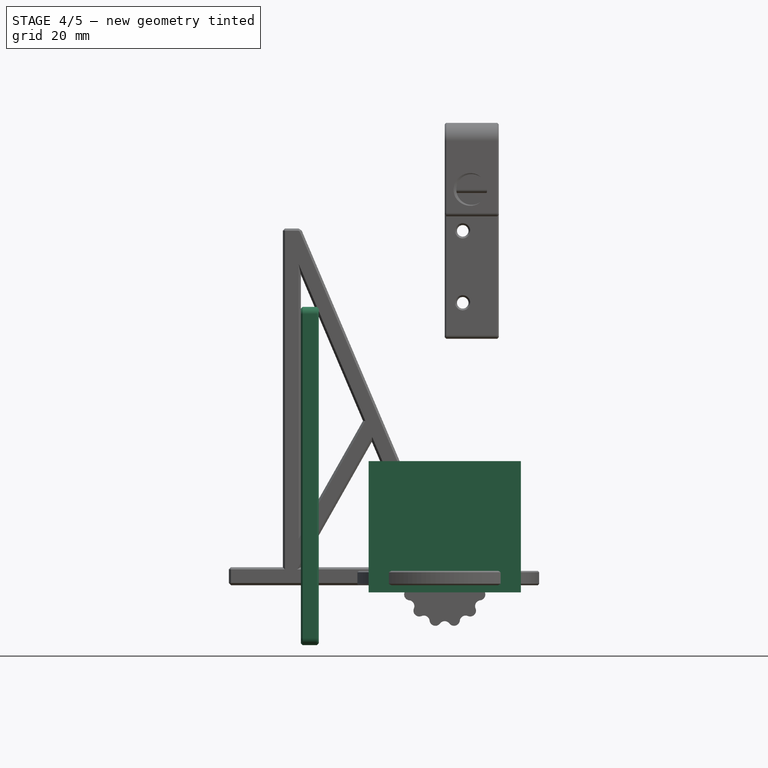
[diagram: stage 4 of 5 — front view after this stage's code; geometry added in this stage tinted green]
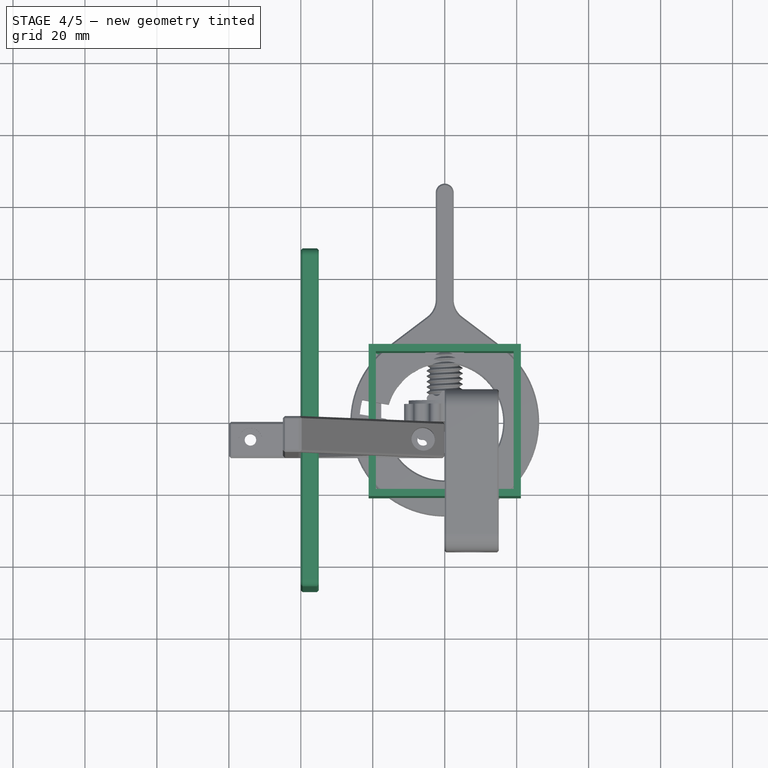
[diagram: stage 4 of 5 — top view after this stage's code; geometry added in this stage tinted green]
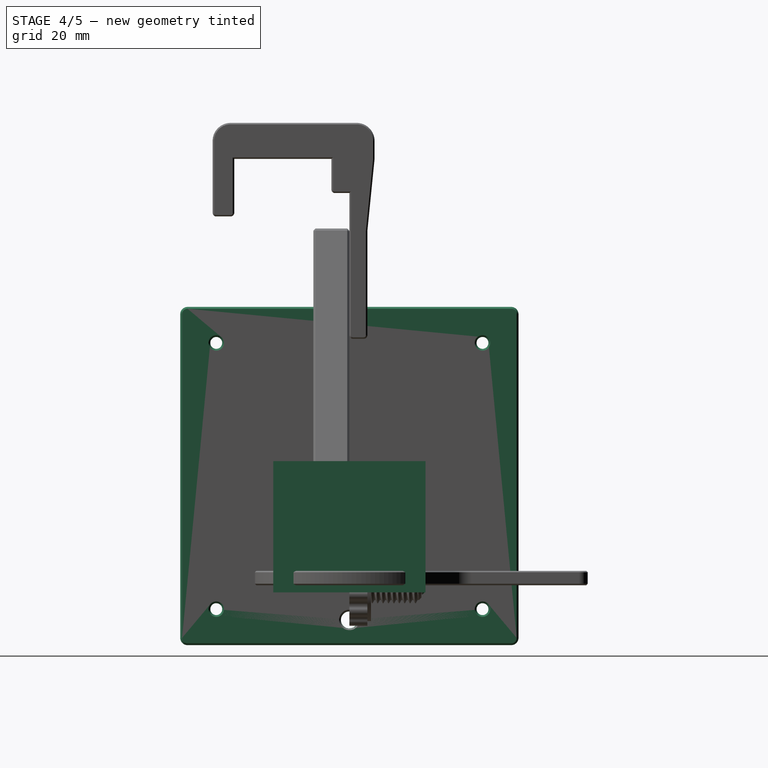
[diagram: stage 4 of 5 — right view after this stage's code; geometry added in this stage tinted green]
FEATURE [Sketcher::SketchObject] Sketch001
  ArcFitTolerance = 1e-06
  AttachmentSupport = -> [XY_Plane]
  FullyConstrained = true
  MakeInternals = false
  MapMode = 5
  expr: Constraints[10] = Spreadsheet.cam_width + Spreadsheet.tolerance * 2
  expr: Constraints[26] = Spreadsheet.cam_side_thickness
  sketch-geometry (12):
    g0: LineSegment StartX=-19.15 StartY=19.15 StartZ=0 EndX=-19.15 EndY=-19.15 EndZ=0
    g1: LineSegment StartX=-19.15 StartY=-19.15 StartZ=0 EndX=19.15 EndY=-19.15 EndZ=0
    g2: LineSegment StartX=19.15 StartY=-19.15 StartZ=0 EndX=19.15 EndY=19.15 EndZ=0
    g3: LineSegment StartX=19.15 StartY=19.15 StartZ=0 EndX=-19.15 EndY=19.15 EndZ=0
    g4: GeomPoint [constr] X=0 Y=0 Z=0
    g5: LineSegment StartX=-21.15 StartY=21.15 StartZ=0 EndX=-21.15 EndY=-21.15 EndZ=0
    g6: LineSegment StartX=-21.15 StartY=-21.15 StartZ=0 EndX=21.15 EndY=-21.15 EndZ=0
    g7: LineSegment StartX=21.15 StartY=-21.15 StartZ=0 EndX=21.15 EndY=21.15 EndZ=0
    g8: LineSegment StartX=21.15 StartY=21.15 StartZ=0 EndX=-21.15 EndY=21.15 EndZ=0
    g9: GeomPoint [constr] X=0 Y=0 Z=0
    g10: LineSegment [constr] StartX=19.15 StartY=19.15 StartZ=0 EndX=21.15 EndY=19.15 EndZ=0
    g11: LineSegment [constr] StartX=19.15 StartY=21.15 StartZ=0 EndX=19.15 EndY=19.15 EndZ=0
  constraints (30):
    c: Coincident(g0,g1)
    c: Coincident(g1,g2)
    c: Coincident(g2,g3)
    c: Coincident(g3,g0)
    c: Vertical(g0)
    c: Vertical(g2)
    c: Horizontal(g1)
    c: Horizontal(g3)
    c: Symmetric(g2,g0,g4)
    c: Coincident(g4,g-1)
    c: DistanceY(g2,g2) = 38.3
    c: Equal(g2,g3)
    c: Coincident(g5,g6)
    c: Coincident(g6,g7)
    c: Coincident(g8,g5)
    c: Vertical(g5)
    c: Vertical(g7)
    c: Horizontal(g6)
    c: Horizontal(g8)
    c: Symmetric(g7,g5,g9)
    c: Coincident(g9,g4)
    c: Coincident(g11,g10)
    c: Horizontal(g10)
    c: Vertical(g11)
    c: Coincident(g10,g2)
    c: Equal(g11,g10)
    c: DistanceY(g11,g11) = 2
    c: Coincident(g7,g8)
    c: PointOnObject(g11,g8)
    c: PointOnObject(g10,g7)
FEATURE [Spreadsheet::Sheet] Spreadsheet
  cells = A1='tolerance; B1(tolerance)==0.15 mm; A2='cam_width; B2(cam_width)==38 mm; A3='cam_height; B3(cam_height)==38 mm; A4='cam_length; B4(cam_length)==33.5 mm; A5='straight_side_length; B5(straight_side_length)==13.5 mm; A6='taper_width; B6(taper_width)==37.5 mm; A7='screw_mount_height; B7(screw_mount_height)==1 mm; A8='screw_mount_width; B8(screw_mount_width)==9 mm; A9='screw_mount_length; B9(screw_mount_length)==10 mm; A10='screw_edge_dist; B10(screw_edge_dist)==7.5 mm; A11='cam_side_thickness; B11(cam_side_thickness)==2 mm; A12='cam_edge_length; B12(cam_edge_length)==1 mm; A13='cam_edge_tab_length; B13(cam_edge_tab_length)==10 mm; A14='cam_edge_tab_thickness; B14(cam_edge_tab_thickness)==0.5 mm; A15='cam_back_edge_width; B15(cam_back_edge_width)==1.5 mm; A16='cam_back_edge_thickness; B16(cam_back_edge_thickness)==2 mm; A17='cam_elevation_dist; B17(cam_elevation_dist)==23 mm; A18='cam_screw_dia; B18(cam_screw_dia)==7 mm; A19='cam_full_width; B19(cam_full_width)==cam_width + 2 * tolerance + 2 * cam_side_thickness + 2 * cam_side_mount_thickness; A20='cam_side_mount_thickness; B20(cam_side_mount_thickness)==4 mm; A21='rot_bottom_thickness; B21(rot_bottom_thickness)==3 mm; A22='rot_side_thickness; B22(rot_side_thickness)==3 mm; A23='rot_dia; B23(rot_dia)==90 mm; A24='rot_side_width; B24(rot_side_width)==62 mm; A25='rot_side_center_height; B25(rot_side_center_height)==32 mm; A26='rot_side_height; B26(rot_side_height)==53 mm; A27='rot_base_width; B27(rot_base_width)==rot_dia + 4 mm; A28='rot_base_thickness; B28(rot_base_thickness)==5 mm; A29='bracket_strut_thickness; B29(bracket_strut_thickness)==5 mm; A30='bracket_width; B30(bracket_width)==10 mm; A31='bracket_height; B31(bracket_height)==60 mm; A32='bracket_top; B32(bracket_top)==15 mm; A33='rot_base_screw_offset; B33(rot_base_screw_offset)==10 mm
FEATURE [PartDesign::Pad] Pad
  Direction = (0,0,1)
  Length = 34.5
  Length2 = 10
  Profile = -> Sketch001
  ReferenceAxis = -> Sketch001 [N_Axis]
  Suppressed = false
  Type = 0
  expr: Length = Spreadsheet.cam_length + Spreadsheet.cam_edge_length
FEATURE [Sketcher::SketchObject] Sketch
  ArcFitTolerance = 1e-06
  AttachmentSupport = -> [XY_Plane]
  ExternalGeometry = -> [Sketch001]
  FullyConstrained = true
  MakeInternals = false
  MapMode = 5
  expr: Constraints[25] = Spreadsheet.cam_side_thickness + Spreadsheet.cam_back_edge_width
  sketch-geometry (15):
    g0: LineSegment StartX=-17.65 StartY=16.65 StartZ=0 EndX=-17.65 EndY=-16.65 EndZ=0
    g1: LineSegment StartX=-16.65 StartY=-17.65 StartZ=0 EndX=16.65 EndY=-17.65 EndZ=0
    g2: LineSegment StartX=17.65 StartY=-16.65 StartZ=0 EndX=17.65 EndY=16.65 EndZ=0
    g3: LineSegment StartX=16.65 StartY=17.65 StartZ=0 EndX=-16.65 EndY=17.65 EndZ=0
    g4: ArcOfCircle CenterX=-16.65 CenterY=16.65 CenterZ=0 NormalX=0 NormalY=0 NormalZ=1 AngleXU=0 Radius=1 StartAngle=1.5708 EndAngle=3.14159
    g5: ArcOfCircle CenterX=-16.65 CenterY=-16.65 CenterZ=0 NormalX=0 NormalY=0 NormalZ=1 AngleXU=0 Radius=1 StartAngle=3.14159 EndAngle=4.71239
    g6: ArcOfCircle CenterX=16.65 CenterY=-16.65 CenterZ=0 NormalX=0 NormalY=0 NormalZ=1 AngleXU=0 Radius=1 StartAngle=4.71239 EndAngle=6.28319
    g7: ArcOfCircle CenterX=16.65 CenterY=16.65 CenterZ=0 NormalX=0 NormalY=0 NormalZ=1 AngleXU=0 Radius=1 StartAngle=8e-16 EndAngle=1.5708
    g8: GeomPoint [constr] X=-17.65 Y=17.65 Z=0
    g9: GeomPoint [constr] X=17.65 Y=-17.65 Z=0
    g10: LineSegment [constr] StartX=-21.15 StartY=0 StartZ=0 EndX=-17.65 EndY=0 EndZ=0
    g11: LineSegment StartX=-21.15 StartY=21.15 StartZ=0 EndX=-21.15 EndY=-21.15 EndZ=0
    g12: LineSegment StartX=-21.15 StartY=-21.15 StartZ=0 EndX=21.15 EndY=-21.15 EndZ=0
    g13: LineSegment StartX=21.15 StartY=-21.15 StartZ=0 EndX=21.15 EndY=21.15 EndZ=0
    g14: LineSegment StartX=21.15 StartY=21.15 StartZ=0 EndX=-21.15 EndY=21.15 EndZ=0
  constraints (37):
    c: Tangent(g0,g4) = -1.5708
    c: Tangent(g0,g5) = -1.5708
    c: Tangent(g1,g5) = -1.5708
    c: Tangent(g1,g6) = -1.5708
    c: Tangent(g2,g6) = -1.5708
    c: Tangent(g2,g7) = -1.5708
    c: Tangent(g3,g7) = -1.5708
    c: Tangent(g3,g4) = -1.5708
    c: Vertical(g0)
    c: Vertical(g2)
    c: Horizontal(g1)
    c: Horizontal(g3)
    c: Equal(g4,g5)
    c: Equal(g5,g6)
    c: Equal(g6,g7)
    c: PointOnObject(g8,g0)
    c: PointOnObject(g8,g3)
    c: PointOnObject(g9,g1)
    c: PointOnObject(g9,g2)
    c: Radius(g5) = 1
    c: Equal(g3,g0)
    c: PointOnObject(g10,g-4)
    c: PointOnObject(g10,g0)
    c: PointOnObject(g10,g-1)
    c: PointOnObject(g10,g-1)
    c: DistanceX(g10,g10) = 3.5
    c: Symmetric(g6,g4,g-1)
    c: Coincident(g11,g12)
    c: Coincident(g12,g13)
    c: Coincident(g13,g14)
    c: Coincident(g14,g11)
    c: Vertical(g11)
    c: Vertical(g13)
    c: Horizontal(g12)
    c: Horizontal(g14)
    c: Coincident(g11,g-4)
    c: Coincident(g12,g-6)
FEATURE [PartDesign::Pad] Pad001
  BaseFeature = -> Pad
  Direction = (0,0,1)
  Length = 2
  Length2 = 10
  Profile = -> Sketch
  ReferenceAxis = -> Sketch [N_Axis]
  Reversed = true
  Suppressed = false
  Type = 0
  expr: Length = Spreadsheet.cam_back_edge_thickness
FEATURE [PartDesign::Plane] DatumPlane
  AttachmentOffset = pos=(0,0,-19.15) rot=(0,0,1;0rad)
  AttachmentSupport = -> [XZ_Plane]
  Length = 60.9087
  MapMode = 5
  Placement = pos=(0,19.15,-4.3e-15) rot=(1,0,0;1.5708rad)
  ResizeMode = 0
  Width = 70.4087
  expr: .AttachmentOffset.Base.z = -(Spreadsheet.cam_height / 2 + Spreadsheet.tolerance)
FEATURE [Sketcher::SketchObject] Sketch002
  ArcFitTolerance = 1e-06
  AttachmentSupport = -> [DatumPlane]
  FullyConstrained = true
  MakeInternals = false
  MapMode = 5
  Placement = pos=(0,19.15,-4.3e-15) rot=(1,0,0;1.5708rad)
  expr: Constraints[20] = Spreadsheet.cam_length + Spreadsheet.cam_edge_length
  expr: Constraints[6] = Spreadsheet.screw_edge_dist
  expr: Constraints[8] = Spreadsheet.screw_mount_length + 2 mm
  expr: Constraints[9] = Spreadsheet.screw_mount_width + 2 mm
  sketch-geometry (8):
    g0: Circle CenterX=0 CenterY=7.5 CenterZ=0 NormalX=0 NormalY=0 NormalZ=1 AngleXU=0 Radius=3.5
    g1: LineSegment StartX=-5.5 StartY=13.5 StartZ=0 EndX=-5.5 EndY=1.5 EndZ=0
    g2: LineSegment StartX=-5.5 StartY=1.5 StartZ=0 EndX=5.5 EndY=1.5 EndZ=0
    g3: LineSegment StartX=5.5 StartY=1.5 StartZ=0 EndX=5.5 EndY=13.5 EndZ=0
    g4: LineSegment StartX=5.5 StartY=13.5 StartZ=0 EndX=5.5 EndY=34.5 EndZ=0
    g5: LineSegment StartX=5.5 StartY=34.5 StartZ=0 EndX=-5.5 EndY=34.5 EndZ=0
    g6: LineSegment StartX=-5.5 StartY=34.5 StartZ=0 EndX=-5.5 EndY=13.5 EndZ=0
    g7: LineSegment StartX=-5.5 StartY=13.5 StartZ=0 EndX=5.5 EndY=13.5 EndZ=0
  constraints (22):
    c: PointOnObject(g0,g-2)
    c: Coincident(g1,g2)
    c: Coincident(g2,g3)
    c: Vertical(g1)
    c: Vertical(g3)
    c: Horizontal(g2)
    c: DistanceY(g-1,g0) = 7.5
    c: Symmetric(g2,g1,g0)
    c: DistanceY(g1,g1) = 12
    c: DistanceX(g1,g3) = 11
    c: Diameter(g0) = 7
    c: Coincident(g4,g5)
    c: Coincident(g5,g6)
    c: Coincident(g6,g7)
    c: Coincident(g7,g4)
    c: Vertical(g4)
    c: Vertical(g6)
    c: Horizontal(g5)
    c: Coincident(g4,g3)
    c: Coincident(g6,g1)
    c: DistanceY(g-1,g4) = 34.5
    c: Horizontal(g7)
FEATURE [Sketcher::SketchObject] Sketch003
  ArcFitTolerance = 1e-06
  AttachmentSupport = -> [DatumPlane]
  FullyConstrained = true
  MakeInternals = false
  MapMode = 5
  Placement = pos=(0,19.15,-4.3e-15) rot=(1,0,0;1.5708rad)
  expr: Constraints[20] = Spreadsheet.cam_length + Spreadsheet.cam_edge_length + 1 mm
  expr: Constraints[6] = Spreadsheet.screw_edge_dist
  expr: Constraints[8] = Spreadsheet.screw_mount_length + 2 mm
  expr: Constraints[9] = Spreadsheet.screw_mount_width + 2 mm
  sketch-geometry (8):
    g0: Circle CenterX=0 CenterY=7.5 CenterZ=0 NormalX=0 NormalY=0 NormalZ=1 AngleXU=0 Radius=3.5
    g1: LineSegment StartX=-5.5 StartY=13.5 StartZ=0 EndX=-5.5 EndY=1.5 EndZ=0
    g2: LineSegment StartX=-5.5 StartY=1.5 StartZ=0 EndX=5.5 EndY=1.5 EndZ=0
    g3: LineSegment StartX=5.5 StartY=1.5 StartZ=0 EndX=5.5 EndY=13.5 EndZ=0
    g4: LineSegment StartX=5.5 StartY=13.5 StartZ=0 EndX=5.5 EndY=35.5 EndZ=0
    g5: LineSegment StartX=5.5 StartY=35.5 StartZ=0 EndX=-5.5 EndY=35.5 EndZ=0
    g6: LineSegment StartX=-5.5 StartY=35.5 StartZ=0 EndX=-5.5 EndY=13.5 EndZ=0
    g7: LineSegment StartX=-5.5 StartY=13.5 StartZ=0 EndX=5.5 EndY=13.5 EndZ=0
  constraints (22):
    c: PointOnObject(g0,g-2)
    c: Coincident(g1,g2)
    c: Coincident(g2,g3)
    c: Vertical(g1)
    c: Vertical(g3)
    c: Horizontal(g2)
    c: DistanceY(g-1,g0) = 7.5
    c: Symmetric(g2,g1,g0)
    c: DistanceY(g1,g1) = 12
    c: DistanceX(g1,g3) = 11
    c: Diameter(g0) = 7
    c: Coincident(g4,g5)
    c: Coincident(g5,g6)
    c: Coincident(g6,g7)
    c: Coincident(g7,g4)
    c: Vertical(g4)
    c: Vertical(g6)
    c: Horizontal(g5)
    c: Coincident(g4,g3)
    c: Coincident(g6,g1)
    c: DistanceY(g-1,g4) = 35.5
    c: Horizontal(g7)
FEATURE [Sketcher::SketchObject] Sketch004
  ArcFitTolerance = 1e-06
  AttachmentSupport = -> [DatumPlane]
  ExternalGeometry = -> [Sketch003]
  FullyConstrained = true
  MakeInternals = false
  MapMode = 5
  Placement = pos=(0,19.15,-4.3e-15) rot=(1,0,0;1.5708rad)
  sketch-geometry (4):
    g0: LineSegment StartX=-5.5 StartY=13.5 StartZ=0 EndX=-5.5 EndY=1.5 EndZ=0
    g1: LineSegment StartX=-5.5 StartY=1.5 StartZ=0 EndX=5.5 EndY=1.5 EndZ=0
    g2: LineSegment StartX=5.5 StartY=1.5 StartZ=0 EndX=5.5 EndY=13.5 EndZ=0
    g3: LineSegment StartX=5.5 StartY=13.5 StartZ=0 EndX=-5.5 EndY=13.5 EndZ=0
  constraints (10):
    c: Coincident(g0,g1)
    c: Coincident(g1,g2)
    c: Coincident(g2,g3)
    c: Coincident(g3,g0)
    c: Vertical(g0)
    c: Vertical(g2)
    c: Horizontal(g1)
    c: Horizontal(g3)
    c: Coincident(g0,g-5)
    c: Coincident(g1,g-6)
FEATURE [PartDesign::Pocket] Pocket
  BaseFeature = -> Pad001
  Direction = (0,1,-2e-16)
  Length = 1
  Length2 = 5
  Profile = -> Sketch004
  ReferenceAxis = -> Sketch004 [N_Axis]
  Suppressed = false
  TaperAngle = -45
  Type = 0
FEATURE [PartDesign::Pocket] Pocket001
  BaseFeature = -> Pocket
  Direction = (0,1,-2e-16)
  Length = 2
  Length2 = 5
  Profile = -> Sketch002 [Edge1]
  ReferenceAxis = -> Sketch002 [N_Axis]
  Suppressed = false
  Type = 0
FEATURE [PartDesign::Chamfer] Chamfer003
  Angle = 45
  Base = -> Chamfer002 [Edge142,Edge13,Edge41,Edge164]
  BaseFeature = -> Chamfer002
  ChamferType = 0
  FlipDirection = false
  Placement = pos=(0,0,0) rot=(1,1,1;2.0944rad)
  Size = 0.5
  Size2 = 1
  SupportTransform = false
  Suppressed = false
  UseAllEdges = false
FEATURE [Sketcher::SketchObject] Sketch015
  ArcFitTolerance = 1e-06
  AttachmentSupport = -> [YZ_Plane001]
  ExternalGeometry = -> [Sketch013]
  FullyConstrained = true
  MakeInternals = false
  MapMode = 5
  Placement = pos=(0,0,0) rot=(0.57735,0.57735,0.57735;2.0944rad)
  sketch-geometry (7):
    g0: Circle CenterX=0 CenterY=30.3506 CenterZ=0 NormalX=0 NormalY=0 NormalZ=1 AngleXU=0 Radius=1.65
    g1: ArcOfCircle CenterX=0 CenterY=30.3506 CenterZ=0 NormalX=0 NormalY=0 NormalZ=1 AngleXU=0 Radius=41.7 StartAngle=4.18879 EndAngle=5.23599
    g2: ArcOfCircle CenterX=-20 CenterY=-4.29039 CenterZ=0 NormalX=0 NormalY=0 NormalZ=1 AngleXU=0 Radius=1.7 StartAngle=1.0472 EndAngle=4.18879
    g3: ArcOfCircle CenterX=20 CenterY=-4.29039 CenterZ=0 NormalX=0 NormalY=0 NormalZ=1 AngleXU=0 Radius=1.7 StartAngle=5.23599 EndAngle=8.37758
    g4: ArcOfCircle CenterX=0 CenterY=30.3506 CenterZ=0 NormalX=0 NormalY=0 NormalZ=1 AngleXU=0 Radius=38.3 StartAngle=4.18879 EndAngle=5.23599
    g5: LineSegment [constr] StartX=0 StartY=30.3506 StartZ=0 EndX=20 EndY=-4.29039 EndZ=0
    g6: LineSegment [constr] StartX=0 StartY=30.3506 StartZ=0 EndX=-20 EndY=-4.29039 EndZ=0
  constraints (16):
    c: Coincident(g0,g-3)
    c: Diameter(g0) = 3.3
    c: Coincident(g1,g4)
    c: Tangent(g4,g3) = 1.5708
    c: Tangent(g4,g2) = 1.5708
    c: Tangent(g1,g3) = -1.5708
    c: Tangent(g1,g2) = -1.5708
    c: Coincident(g1,g0)
    c: Radius(g3) = 1.7
    c: Coincident(g5,g0)
    c: Coincident(g5,g3)
    c: Coincident(g6,g0)
    c: Coincident(g6,g2)
    c: Distance(g5,g5) = 40
    c: Horizontal(g3,g2)
    c: Angle(g-2,g5) = 0.523599
FEATURE [PartDesign::Pocket] Pocket007
  BaseFeature = -> Chamfer003
  Direction = (-1,0,0)
  Length = 5
  Length2 = 5
  Placement = pos=(0,0,0) rot=(1,1,1;2.0944rad)
  Profile = -> Sketch015
  ReferenceAxis = -> Sketch015 [N_Axis]
  Suppressed = false
  Type = 1
FEATURE [PartDesign::Chamfer] Chamfer004
  Angle = 45
  Base = -> Pocket007 [Edge70,Edge60,Edge111,Edge131]
  BaseFeature = -> Pocket007
  ChamferType = 0
  FlipDirection = false
  Placement = pos=(0,0,0) rot=(1,1,1;2.0944rad)
  Size = 0.5
  Size2 = 1
  SupportTransform = false
  Suppressed = false
  UseAllEdges = false
FEATURE [Sketcher::SketchObject] Sketch017
  ArcFitTolerance = 1e-06
  AttachmentSupport = -> [XZ_Plane002]
  FullyConstrained = true
  MakeInternals = false
  MapMode = 5
  Placement = pos=(0,0,0) rot=(1,0,0;1.5708rad)
  sketch-geometry (1):
    g0: Circle CenterX=0 CenterY=0 CenterZ=0 NormalX=0 NormalY=0 NormalZ=1 AngleXU=0 Radius=3
  constraints (2):
    c: Coincident(g0,g-1)
    c: Diameter(g0) = 6
FEATURE [Part::FeaturePython] ThreadedRod001  label="1/4inx21-ThreadedRod"  # WARN: FeaturePython — macro-defined, semantics opaque (R4)
  BaseObject = -> Body002 [Sketch017.Edge1]
  Diameter = 10
  DiameterCustom = 2
  Invert = false
  LeftHanded = false
  Length = 21
  MatchOuter = false
  OffsetAngle = 0
  PitchCustom = 1
  Placement = pos=(0,0,0) rot=(1,0,0;1.5708rad)
  Thread = true
  Type = 5
FEATURE [PartDesign::SubShapeBinder] Binder
  BindCopyOnChange = 0
  BindMode = 0
  ClaimChildren = false
  Context = -> Body004 [Binder.]
  Fuse = false
  MakeFace = true
  OffsetFill = false
  OffsetIntersection = false
  OffsetJoinType = 0
  OffsetOpenResult = false
  PartialLoad = false
  Relative = true
  Support = -> [Body001[Sketch013.]]
  _Version = 2
FEATURE [PartDesign::SubShapeBinder] Binder001
  BindCopyOnChange = 0
  BindMode = 0
  ClaimChildren = false
  Context = -> Body004 [Binder001.]
  Fuse = false
  MakeFace = true
  OffsetFill = false
  OffsetIntersection = false
  OffsetJoinType = 0
  OffsetOpenResult = false
  PartialLoad = false
  Relative = true
  Support = -> [Body001[Sketch015.]]
  _Version = 2
FEATURE [Sketcher::SketchObject] Sketch019
  ArcFitTolerance = 1e-06
  AttachmentOffset = pos=(0,0,-35) rot=(0,0,1;0rad)
  AttachmentSupport = -> [YZ_Plane004]
  ExternalGeometry = -> [Binder,Binder001]
  FullyConstrained = true
  MakeInternals = false
  MapMode = 5
  Placement = pos=(-35,0,0) rot=(0.57735,0.57735,0.57735;2.0944rad)
  expr: .AttachmentOffset.Base.z = -(Spreadsheet.rot_side_center_height + Spreadsheet.rot_bottom_thickness)
  expr: Constraints[10] = Spreadsheet.rot_base_width
  sketch-geometry (16):
    g0: LineSegment StartX=-47 StartY=77.3506 StartZ=0 EndX=-47 EndY=-16.6494 EndZ=0
    g1: LineSegment StartX=-47 StartY=-16.6494 StartZ=0 EndX=47 EndY=-16.6494 EndZ=0
    g2: LineSegment StartX=47 StartY=-16.6494 StartZ=0 EndX=47 EndY=77.3506 EndZ=0
    g3: LineSegment StartX=47 StartY=77.3506 StartZ=0 EndX=-47 EndY=77.3506 EndZ=0
    g4: Circle CenterX=0 CenterY=30.3506 CenterZ=0 NormalX=0 NormalY=0 NormalZ=1 AngleXU=0 Radius=2.35
    g5: Circle CenterX=-37 CenterY=67.3506 CenterZ=0 NormalX=0 NormalY=0 NormalZ=1 AngleXU=0 Radius=1.65
    g6: Circle CenterX=37 CenterY=67.3506 CenterZ=0 NormalX=0 NormalY=0 NormalZ=1 AngleXU=0 Radius=1.65
    g7: Circle CenterX=-37 CenterY=-6.64938 CenterZ=0 NormalX=0 NormalY=0 NormalZ=1 AngleXU=0 Radius=1.65
    g8: Circle CenterX=37 CenterY=-6.64938 CenterZ=0 NormalX=0 NormalY=0 NormalZ=1 AngleXU=0 Radius=1.65
    g9: LineSegment [constr] StartX=-37 StartY=67.3506 StartZ=0 EndX=-37 EndY=-6.64938 EndZ=0
    g10: LineSegment [constr] StartX=-37 StartY=-6.64938 StartZ=0 EndX=37 EndY=-6.64938 EndZ=0
    g11: LineSegment [constr] StartX=37 StartY=-6.64938 StartZ=0 EndX=37 EndY=67.3506 EndZ=0
    g12: LineSegment [constr] StartX=37 StartY=67.3506 StartZ=0 EndX=-37 EndY=67.3506 EndZ=0
    g13: Circle CenterX=0 CenterY=-9.64938 CenterZ=0 NormalX=0 NormalY=0 NormalZ=1 AngleXU=0 Radius=2.35
    g14: GeomPoint X=0 Y=-7.94938 Z=0
    g15: GeomPoint X=0 Y=-11.3494 Z=0
  constraints (38):
    c: Coincident(g0,g1)
    c: Coincident(g1,g2)
    c: Coincident(g2,g3)
    c: Coincident(g3,g0)
    c: Vertical(g0)
    c: Vertical(g2)
    c: Horizontal(g1)
    c: Horizontal(g3)
    c: Equal(g0,g3)
    c: Symmetric(g0,g1,g-3)
    c: DistanceX(g1,g1) = 94
    c: Coincident(g4,g-3)
    c: Diameter(g4) = 4.7
    c: Coincident(g9,g10)
    c: Coincident(g10,g11)
    c: Coincident(g11,g12)
    c: Coincident(g12,g9)
    c: Vertical(g9)
    c: Vertical(g11)
    c: Horizontal(g10)
    c: Horizontal(g12)
    c: Coincident(g9,g5)
    c: Coincident(g10,g8)
    c: Symmetric(g5,g8,g4)
    c: DistanceY(g1,g8) = 10
    c: DistanceX(g8,g1) = 10
    c: Coincident(g7,g9)
    c: Coincident(g6,g11)
    c: Equal(g6,g5)
    c: Equal(g5,g7)
    c: Equal(g7,g8)
    c: Diameter(g7) = 3.3
    c: PointOnObject(g13,g-2)
    c: Diameter(g13) = 4.7
    c: PointOnObject(g14,g-4)
    c: PointOnObject(g15,g-5)
    c: PointOnObject(g15,g-2)
    c: Symmetric(g14,g15,g13)
FEATURE [PartDesign::Pad] Pad008
  Direction = (1,0,0)
  Length = 5
  Length2 = 10
  Placement = pos=(0,0,0) rot=(1,1,1;2.0944rad)
  Profile = -> Sketch019
  ReferenceAxis = -> Sketch019 [N_Axis]
  Reversed = true
  Suppressed = false
  Type = 0
  expr: Length = Spreadsheet.rot_base_thickness
FEATURE [PartDesign::Fillet] Fillet003
  Base = -> Pad008 [Edge2,Edge1,Edge8,Edge5]
  BaseFeature = -> Pad008
  Placement = pos=(0,0,0) rot=(1,1,1;2.0944rad)
  Radius = 2
  SupportTransform = false
  Suppressed = false
  UseAllEdges = false
FEATURE [PartDesign::Chamfer] Chamfer005
  Angle = 45
  Base = -> Fillet003 [Face2]
  BaseFeature = -> Fillet003
  ChamferType = 0
  FlipDirection = false
  Placement = pos=(0,0,0) rot=(1,1,1;2.0944rad)
  Size = 0.5
  Size2 = 1
  SupportTransform = false
  Suppressed = false
  UseAllEdges = false
FEATURE [PartDesign::Chamfer] Chamfer006
  Angle = 45
  Base = -> Chamfer005 [Face4]
  BaseFeature = -> Chamfer005
  ChamferType = 0
  FlipDirection = false
  Placement = pos=(0,0,0) rot=(1,1,1;2.0944rad)
  Size = 0.5
  Size2 = 1
  SupportTransform = false
  Suppressed = false
  UseAllEdges = false
FEATURE [PartDesign::Body] Body002  label="thumb"
  AllowCompound = false
  Group = -> [Sketch016,Pad006,Sketch017,Sketch018,Pad007,PolarPattern,Sketch029,Pad012]
  Origin = -> Origin002
  Tip = -> Pad012
FEATURE [PartDesign::FeatureBase] Clone
  BaseFeature = -> Body002
  Suppressed = false
FEATURE [PartDesign::Body] Body003
  AllowCompound = false
  Group = -> [Clone]
  Origin = -> Origin003
  Tip = -> Clone
FEATURE [Part::MultiFuse] Fusion  label="camera-screw"
  Shapes = -> [ThreadedRod001,Body003]
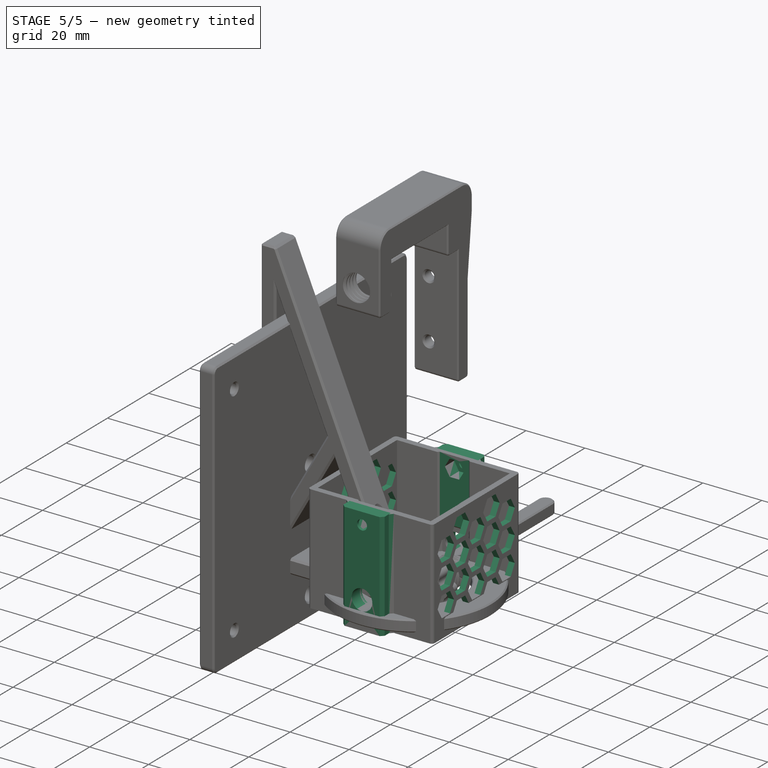
[diagram: stage 5 of 5 — iso view after this stage's code; geometry added in this stage tinted green]
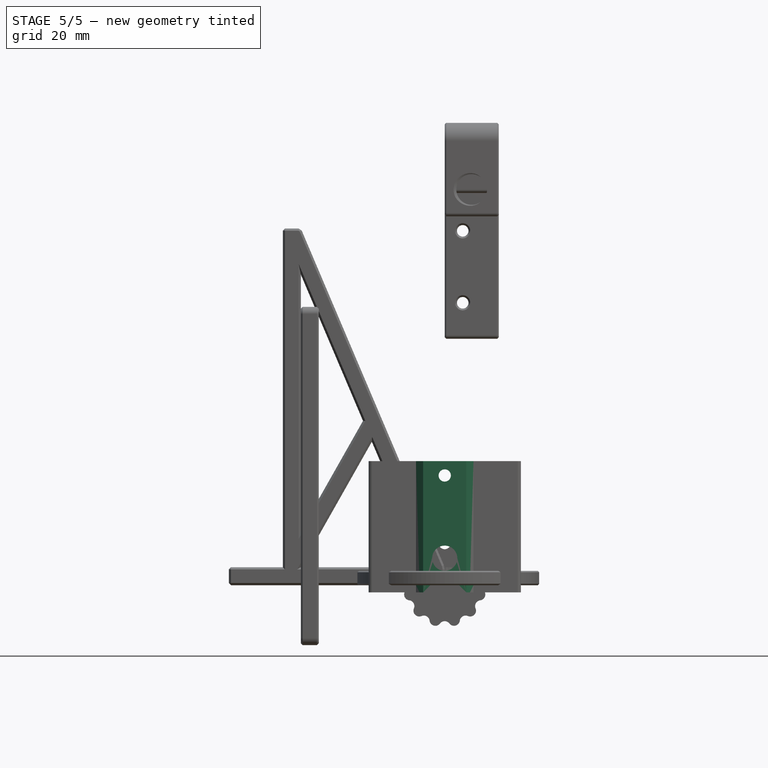
[diagram: stage 5 of 5 — front view after this stage's code; geometry added in this stage tinted green]
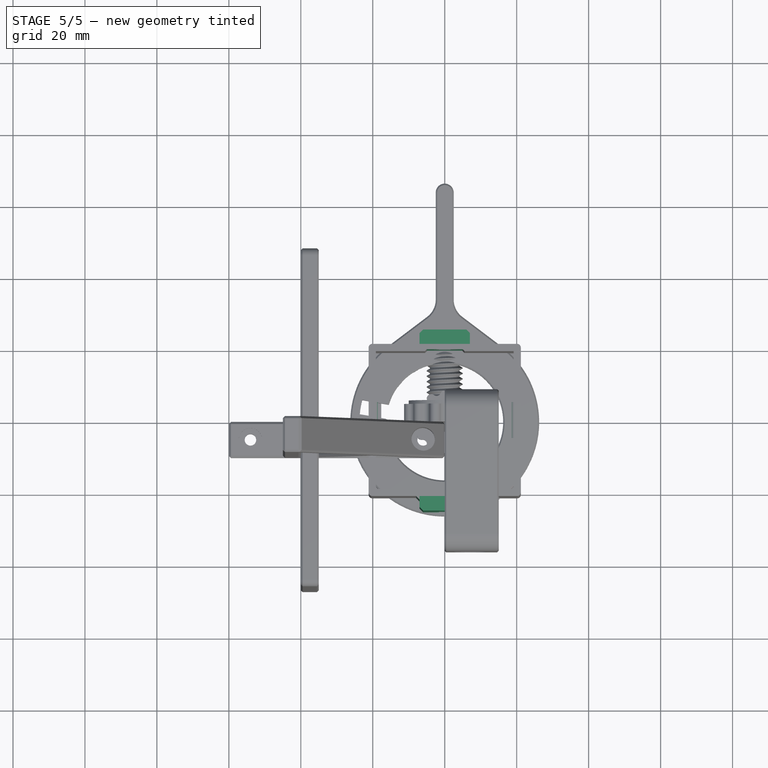
[diagram: stage 5 of 5 — top view after this stage's code; geometry added in this stage tinted green]
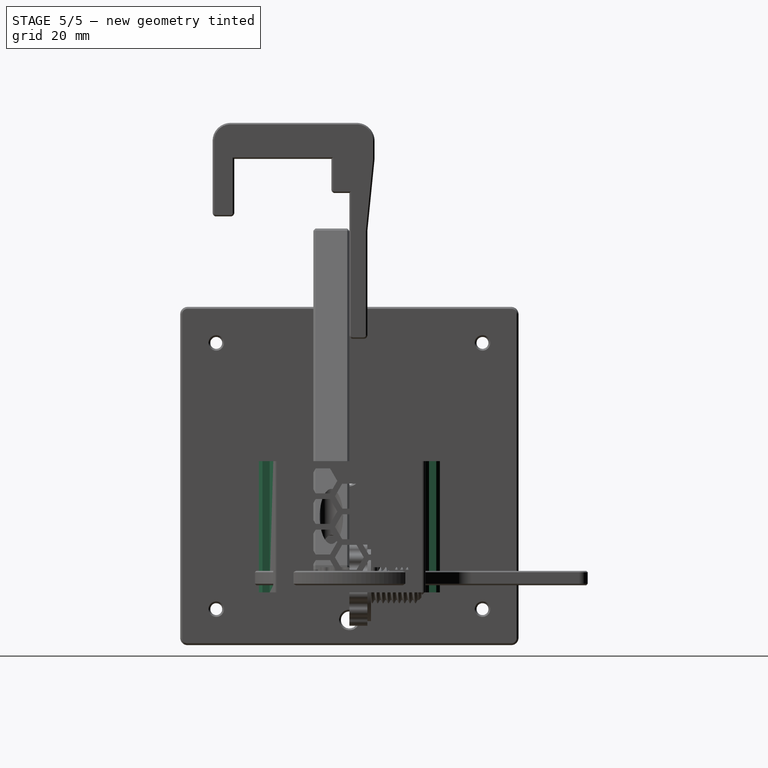
[diagram: stage 5 of 5 — right view after this stage's code; geometry added in this stage tinted green]
FEATURE [PartDesign::Mirrored] Mirrored
  BaseFeature = -> Pocket001
  MirrorPlane = -> XZ_Plane
  Originals = -> [Pocket,Pocket001]
  Suppressed = false
  TransformMode = 0
FEATURE [Sketcher::SketchObject] Sketch005
  ArcFitTolerance = 1e-06
  AttachmentSupport = -> [DatumPlane]
  ExternalGeometry = -> [Sketch003]
  FullyConstrained = true
  MakeInternals = false
  MapMode = 5
  Placement = pos=(0,19.15,-4.3e-15) rot=(1,0,0;1.5708rad)
  sketch-geometry (4):
    g0: LineSegment StartX=-5.5 StartY=35.5 StartZ=0 EndX=-5.5 EndY=1.5 EndZ=0
    g1: LineSegment StartX=-5.5 StartY=1.5 StartZ=0 EndX=5.5 EndY=1.5 EndZ=0
    g2: LineSegment StartX=5.5 StartY=1.5 StartZ=0 EndX=5.5 EndY=35.5 EndZ=0
    g3: LineSegment StartX=5.5 StartY=35.5 StartZ=0 EndX=-5.5 EndY=35.5 EndZ=0
  constraints (10):
    c: Coincident(g0,g1)
    c: Coincident(g1,g2)
    c: Coincident(g2,g3)
    c: Coincident(g3,g0)
    c: Vertical(g0)
    c: Vertical(g2)
    c: Horizontal(g1)
    c: Horizontal(g3)
    c: Coincident(g0,g-3)
    c: Coincident(g1,g-4)
FEATURE [PartDesign::Pocket] Pocket002
  BaseFeature = -> Mirrored
  Direction = (0,1,-2e-16)
  Length = 0.5
  Length2 = 5
  Profile = -> Sketch005
  ReferenceAxis = -> Sketch005 [N_Axis]
  Suppressed = false
  TaperAngle = -45
  Type = 0
FEATURE [PartDesign::Mirrored] Mirrored001
  BaseFeature = -> Pocket002
  MirrorPlane = -> XZ_Plane
  Originals = -> [Pocket002]
  Suppressed = false
  TransformMode = 0
FEATURE [Sketcher::SketchObject] Sketch006
  ArcFitTolerance = 1e-06
  AttachmentSupport = -> [XZ_Plane]
  FullyConstrained = true
  MakeInternals = false
  MapMode = 5
  Placement = pos=(0,0,0) rot=(1,0,0;1.5708rad)
  expr: Constraints[2] = Spreadsheet.cam_edge_tab_thickness
  expr: Constraints[7] = Spreadsheet.cam_edge_length
  expr: Constraints[8] = Spreadsheet.cam_length
  expr: Constraints[9] = Spreadsheet.cam_width / 2 + Spreadsheet.tolerance
  sketch-geometry (9):
    g0: ArcOfCircle CenterX=-18.9 CenterY=34.1036 CenterZ=0 NormalX=0 NormalY=0 NormalZ=1 AngleXU=0 Radius=0.25 StartAngle=5.49779 EndAngle=7.40842
    g1: ArcOfCircle CenterX=18.9 CenterY=34.1036 CenterZ=0 NormalX=0 NormalY=0 NormalZ=1 AngleXU=0 Radius=0.25 StartAngle=2.01636 EndAngle=3.92699
    g2: LineSegment StartX=-18.7923 StartY=34.3291 StartZ=0 EndX=-19.15 EndY=34.5 EndZ=0
    g3: LineSegment StartX=-19.15 StartY=34.5 StartZ=0 EndX=-19.15 EndY=33.5 EndZ=0
    g4: LineSegment StartX=-19.15 StartY=33.5 StartZ=0 EndX=-18.7232 EndY=33.9268 EndZ=0
    g5: LineSegment StartX=18.7923 StartY=34.3291 StartZ=0 EndX=19.15 EndY=34.5 EndZ=0
    g6: LineSegment StartX=19.15 StartY=34.5 StartZ=0 EndX=19.15 EndY=33.5 EndZ=0
    g7: LineSegment StartX=19.15 StartY=33.5 StartZ=0 EndX=18.7232 EndY=33.9268 EndZ=0
    g8: Circle [constr] CenterX=-18.9 CenterY=34.1036 CenterZ=0 NormalX=0 NormalY=0 NormalZ=1 AngleXU=0 Radius=0.25
  constraints (21):
    c: Equal(g1,g0)
    c: Symmetric(g0,g1,g-2)
    c: Diameter(g0) = 0.5
    c: Coincident(g2,g3)
    c: Vertical(g3)
    c: Coincident(g3,g4)
    c: Angle(g4,g3) = 0.785398
    c: DistanceY(g3,g3) = 1
    c: Distance(g3,g-1) = 33.5
    c: Distance(g2,g-2) = 19.15
    c: Coincident(g5,g6)
    c: Coincident(g6,g7)
    c: Symmetric(g6,g3,g-2)
    c: Symmetric(g2,g5,g-2)
    c: Tangent(g1,g7) = 1.5708
    c: Tangent(g1,g5) = 1.5708
    c: Tangent(g0,g2) = -1.5708
    c: Tangent(g0,g4) = -1.5708
    c: Coincident(g8,g0)
    c: Equal(g8,g0)
    c: Tangent(g8,g3)
FEATURE [PartDesign::Pad] Pad002
  BaseFeature = -> Mirrored001
  Direction = (0,-1,2e-16)
  Length = 10
  Length2 = 10
  Midplane = true
  Profile = -> Sketch006
  ReferenceAxis = -> Sketch006 [N_Axis]
  Suppressed = false
  Type = 0
  expr: Length = Spreadsheet.cam_edge_tab_length
FEATURE [PartDesign::Plane] DatumPlane001
  AttachmentOffset = pos=(0,0,21.15) rot=(0,0,1;0rad)
  AttachmentSupport = -> [XZ_Plane]
  Length = 60.9087
  MapMode = 5
  Placement = pos=(0,-21.15,4.7e-15) rot=(1,0,0;1.5708rad)
  ResizeMode = 0
  Width = 70.4087
  expr: .AttachmentOffset.Base.z = Spreadsheet.cam_height / 2 + Spreadsheet.tolerance + Spreadsheet.cam_side_thickness
FEATURE [Sketcher::SketchObject] Sketch007
  ArcFitTolerance = 1e-06
  AttachmentSupport = -> [DatumPlane001]
  ExternalGeometry = -> [Sketch003]
  FullyConstrained = true
  MakeInternals = false
  MapMode = 5
  Placement = pos=(0,-21.15,4.7e-15) rot=(1,0,0;1.5708rad)
  expr: Constraints[11] = Spreadsheet.cam_length + Spreadsheet.cam_edge_length
  expr: Constraints[1] = Spreadsheet.cam_back_edge_thickness
  sketch-geometry (5):
    g0: GeomPoint X=0 Y=-2 Z=0
    g1: LineSegment StartX=-7 StartY=34.5 StartZ=0 EndX=-7 EndY=-2 EndZ=0
    g2: LineSegment StartX=-7 StartY=-2 StartZ=0 EndX=7 EndY=-2 EndZ=0
    g3: LineSegment StartX=7 StartY=-2 StartZ=0 EndX=7 EndY=34.5 EndZ=0
    g4: LineSegment StartX=7 StartY=34.5 StartZ=0 EndX=-7 EndY=34.5 EndZ=0
  constraints (13):
    c: PointOnObject(g0,g-2)
    c: DistanceY(g0,g-1) = 2
    c: Coincident(g1,g2)
    c: Coincident(g2,g3)
    c: Coincident(g3,g4)
    c: Coincident(g4,g1)
    c: Vertical(g1)
    c: Vertical(g3)
    c: Horizontal(g4)
    c: PointOnObject(g0,g2)
    c: Symmetric(g1,g2,g-2)
    c: Distance(g3,g-1) = 34.5
    c: DistanceX(g4,g4) = 14
FEATURE [PartDesign::Pad] Pad003
  BaseFeature = -> Pad002
  Direction = (0,-1,2e-16)
  Length = 4
  Length2 = 10
  Profile = -> Sketch007
  ReferenceAxis = -> Sketch007 [N_Axis]
  Suppressed = false
  Type = 0
FEATURE [Sketcher::SketchObject] Sketch008
  ArcFitTolerance = 1e-06
  AttachmentOffset = pos=(0,0,-2) rot=(0,0,1;0rad)
  AttachmentSupport = -> [DatumPlane001]
  ExternalGeometry = -> [Sketch003]
  FullyConstrained = true
  MakeInternals = false
  MapMode = 5
  Placement = pos=(0,-19.15,4.3e-15) rot=(1,0,0;1.5708rad)
  expr: Constraints[20] = Spreadsheet.cam_elevation_dist
  sketch-geometry (7):
    g0: LineSegment StartX=1.61658 StartY=27.7 StartZ=0 EndX=3.23316 EndY=30.5 EndZ=0
    g1: LineSegment StartX=3.23316 StartY=30.5 StartZ=0 EndX=1.61658 EndY=33.3 EndZ=0
    g2: LineSegment StartX=1.61658 StartY=33.3 StartZ=0 EndX=-1.61658 EndY=33.3 EndZ=0
    g3: LineSegment StartX=-1.61658 StartY=33.3 StartZ=0 EndX=-3.23316 EndY=30.5 EndZ=0
    g4: LineSegment StartX=-3.23316 StartY=30.5 StartZ=0 EndX=-1.61658 EndY=27.7 EndZ=0
    g5: LineSegment StartX=-1.61658 StartY=27.7 StartZ=0 EndX=1.61658 EndY=27.7 EndZ=0
    g6: Circle [constr] CenterX=0 CenterY=30.5 CenterZ=0 NormalX=0 NormalY=0 NormalZ=1 AngleXU=0 Radius=3.23316
  constraints (17):
    c: Coincident(g0,g1)
    c: Coincident(g1,g2)
    c: Coincident(g2,g3)
    c: Coincident(g3,g4)
    c: Coincident(g4,g5)
    c: Coincident(g5,g0)
    c: Equal(g0, g1-g5) x5
    c: PointOnObject(g0,g6)
    c: PointOnObject(g1,g6)
    c: PointOnObject(g2,g6)
    c: PointOnObject(g3,g6)
    c: PointOnObject(g4,g6)
    c: PointOnObject(g5,g6)
    c: DistanceY(g4,g2) = 5.6
    c: Horizontal(g2)
    c: PointOnObject(g6,g-2)
    c: DistanceY(g-3,g6) = 23
FEATURE [PartDesign::Pocket] Pocket003
  BaseFeature = -> Pad003
  Direction = (0,1,-2e-16)
  Length = 5
  Length2 = 5
  Profile = -> Sketch008
  ReferenceAxis = -> Sketch008 [N_Axis]
  Reversed = true
  Suppressed = false
  Type = 0
FEATURE [Sketcher::SketchObject] Sketch009
  ArcFitTolerance = 1e-06
  AttachmentSupport = -> [DatumPlane001]
  ExternalGeometry = -> [Sketch003,Sketch008]
  FullyConstrained = true
  MakeInternals = false
  MapMode = 5
  Placement = pos=(0,-21.15,4.7e-15) rot=(1,0,0;1.5708rad)
  sketch-geometry (4):
    g0: LineSegment [constr] StartX=-3.23316 StartY=30.5 StartZ=0 EndX=3.23316 EndY=30.5 EndZ=0
    g1: GeomPoint [constr] X=0 Y=30.5 Z=0
    g2: Circle CenterX=0 CenterY=30.5 CenterZ=0 NormalX=0 NormalY=0 NormalZ=1 AngleXU=0 Radius=1.7
    g3: Circle CenterX=0 CenterY=7.5 CenterZ=0 NormalX=0 NormalY=0 NormalZ=1 AngleXU=0 Radius=3.5
  constraints (8):
    c: Coincident(g0,g-5)
    c: Coincident(g0,g-4)
    c: PointOnObject(g1,g-2)
    c: PointOnObject(g1,g0)
    c: Coincident(g2,g1)
    c: Diameter(g2) = 3.4
    c: Coincident(g3,g-3)
    c: Equal(g3,g-3)
FEATURE [PartDesign::Pocket] Pocket004
  BaseFeature = -> Pocket003
  Direction = (0,1,-2e-16)
  Length = 10
  Length2 = 5
  Midplane = true
  Profile = -> Sketch009
  ReferenceAxis = -> Sketch009 [N_Axis]
  Suppressed = false
  Type = 0
FEATURE [PartDesign::Mirrored] Mirrored002
  BaseFeature = -> Pocket004
  MirrorPlane = -> XZ_Plane
  Originals = -> [Pad003,Pocket003,Pocket004]
  Suppressed = false
  TransformMode = 0
FEATURE [Sketcher::SketchObject] Sketch010
  ArcFitTolerance = 1e-06
  AttachmentSupport = -> [DatumPlane001]
  FullyConstrained = true
  MakeInternals = false
  MapMode = 5
  Placement = pos=(0,-21.15,4.7e-15) rot=(1,0,0;1.5708rad)
FEATURE [Sketcher::SketchObject] Sketch011
  ArcFitTolerance = 1e-06
  AttachmentSupport = -> [YZ_Plane]
  FullyConstrained = true
  MakeInternals = false
  MapMode = 5
  Placement = pos=(0,0,0) rot=(0.57735,0.57735,0.57735;2.0944rad)
  sketch-geometry (23):
    g0: LineSegment StartX=-5.36122 StartY=25.5359 StartZ=0 EndX=-3.36122 EndY=29 EndZ=0
    g1: LineSegment StartX=-3.36122 StartY=29 StartZ=0 EndX=-5.36122 EndY=32.4641 EndZ=0
    g2: LineSegment StartX=-5.36122 StartY=32.4641 StartZ=0 EndX=-9.36122 EndY=32.4641 EndZ=0
    g3: LineSegment StartX=-9.36122 StartY=32.4641 StartZ=0 EndX=-11.3612 EndY=29 EndZ=0
    g4: LineSegment StartX=-11.3612 StartY=29 StartZ=0 EndX=-9.36122 EndY=25.5359 EndZ=0
    g5: LineSegment StartX=-9.36122 StartY=25.5359 StartZ=0 EndX=-5.36122 EndY=25.5359 EndZ=0
    g6: Circle [constr] CenterX=-7.36122 CenterY=29 CenterZ=0 NormalX=0 NormalY=0 NormalZ=1 AngleXU=0 Radius=4
    g7: LineSegment [constr] StartX=4 StartY=24.75 StartZ=0 EndX=2 EndY=28.2141 EndZ=0
    g8: LineSegment [constr] StartX=2 StartY=28.2141 StartZ=0 EndX=-2 EndY=28.2141 EndZ=0
    g9: LineSegment [constr] StartX=-2 StartY=28.2141 StartZ=0 EndX=-4 EndY=24.75 EndZ=0
    g10: LineSegment [constr] StartX=-4 StartY=24.75 StartZ=0 EndX=-2 EndY=21.2859 EndZ=0
    g11: LineSegment [constr] StartX=-2 StartY=21.2859 StartZ=0 EndX=2 EndY=21.2859 EndZ=0
    g12: LineSegment [constr] StartX=2 StartY=21.2859 StartZ=0 EndX=4 EndY=24.75 EndZ=0
    g13: Circle [constr] CenterX=-9e-16 CenterY=24.75 CenterZ=0 NormalX=0 NormalY=0 NormalZ=1 AngleXU=0 Radius=4
    g14: LineSegment StartX=-12.7224 StartY=21.2859 StartZ=0 EndX=-10.7224 EndY=24.75 EndZ=0
    g15: LineSegment StartX=-10.7224 StartY=24.75 StartZ=0 EndX=-12.7224 EndY=28.2141 EndZ=0
    g16: LineSegment StartX=-12.7224 StartY=28.2141 StartZ=0 EndX=-16.7224 EndY=28.2141 EndZ=0
    g17: LineSegment StartX=-16.7224 StartY=28.2141 StartZ=0 EndX=-18.7224 EndY=24.75 EndZ=0
    g18: LineSegment StartX=-18.7224 StartY=24.75 StartZ=0 EndX=-16.7224 EndY=21.2859 EndZ=0
    g19: LineSegment StartX=-16.7224 StartY=21.2859 StartZ=0 EndX=-12.7224 EndY=21.2859 EndZ=0
    g20: Circle [constr] CenterX=-14.7224 CenterY=24.75 CenterZ=0 NormalX=0 NormalY=0 NormalZ=1 AngleXU=0 Radius=4
    g21: LineSegment [constr] StartX=-7.36122 StartY=29 StartZ=0 EndX=-14.7224 EndY=24.75 EndZ=0
    g22: LineSegment [constr] StartX=-7.36122 StartY=29 StartZ=0 EndX=-9e-16 EndY=24.75 EndZ=0
  constraints (56):
    c: Coincident(g0,g1)
    c: Coincident(g1,g2)
    c: Coincident(g2,g3)
    c: Coincident(g3,g4)
    c: Coincident(g4,g5)
    c: Coincident(g5,g0)
    c: Equal(g0, g1-g5) x5
    c: PointOnObject(g0,g6)
    c: PointOnObject(g1,g6)
    c: PointOnObject(g2,g6)
    c: PointOnObject(g3,g6)
    c: PointOnObject(g4,g6)
    c: PointOnObject(g5,g6)
    c: Coincident(g7,g8)
    c: Coincident(g8,g9)
    c: Coincident(g9,g10)
    c: Coincident(g10,g11)
    c: Coincident(g11,g12)
    c: Coincident(g12,g7)
    c: Equal(g7, g8-g12) x5
    c: PointOnObject(g7,g13)
    c: PointOnObject(g8,g13)
    c: PointOnObject(g9,g13)
    c: PointOnObject(g10,g13)
    c: PointOnObject(g11,g13)
    c: PointOnObject(g12,g13)
    c: Coincident(g14,g15)
    c: Coincident(g15,g16)
    c: Coincident(g16,g17)
    c: Coincident(g17,g18)
    c: Coincident(g18,g19)
    c: Coincident(g19,g14)
    c: Equal(g14, g15-g19) x5
    c: PointOnObject(g14,g20)
    c: PointOnObject(g15,g20)
    c: PointOnObject(g16,g20)
    c: PointOnObject(g17,g20)
    c: PointOnObject(g18,g20)
    c: PointOnObject(g19,g20)
    c: Equal(g13,g6)
    c: Horizontal(g5)
    c: Horizontal(g11)
    c: Horizontal(g19)
    c: Diameter(g6) = 8
    c: Coincident(g21,g6)
    c: Coincident(g21,g20)
    c: Coincident(g22,g6)
    c: Coincident(g22,g13)
    c: Angle(g21,g22) = 2.0944
    c: Angle(g-2,g22) = 1.0472
    c: PointOnObject(g13,g-2)
    c: Distance(g21,g21) = 8.5
    c: Equal(g22,g21)
    c: DistanceX(g20,g13) = 14.7224  'hexa_hori_offset'
    c: DistanceY(g-1,g6) = 29
    c: Equal(g20,g6)
FEATURE [Sketcher::SketchObject] Sketch012
  ArcFitTolerance = 1e-06
  AttachmentSupport = -> [DatumPlane]
  FullyConstrained = true
  MakeInternals = false
  MapMode = 5
  Placement = pos=(0,19.15,-4.3e-15) rot=(1,0,0;1.5708rad)
  expr: Constraints[20] = Spreadsheet.cam_length + Spreadsheet.cam_edge_length
  expr: Constraints[6] = Spreadsheet.screw_edge_dist
  expr: Constraints[8] = Spreadsheet.screw_mount_length + 2 mm
  expr: Constraints[9] = Spreadsheet.screw_mount_width + 2 mm
  sketch-geometry (8):
    g0: Circle CenterX=0 CenterY=7.5 CenterZ=0 NormalX=0 NormalY=0 NormalZ=1 AngleXU=0 Radius=3.5
    g1: LineSegment StartX=-5.5 StartY=13.5 StartZ=0 EndX=-5.5 EndY=1.5 EndZ=0
    g2: LineSegment StartX=-5.5 StartY=1.5 StartZ=0 EndX=5.5 EndY=1.5 EndZ=0
    g3: LineSegment StartX=5.5 StartY=1.5 StartZ=0 EndX=5.5 EndY=13.5 EndZ=0
    g4: LineSegment StartX=5.5 StartY=13.5 StartZ=0 EndX=5.5 EndY=34.5 EndZ=0
    g5: LineSegment StartX=5.5 StartY=34.5 StartZ=0 EndX=-5.5 EndY=34.5 EndZ=0
    g6: LineSegment StartX=-5.5 StartY=34.5 StartZ=0 EndX=-5.5 EndY=13.5 EndZ=0
    g7: LineSegment StartX=-5.5 StartY=13.5 StartZ=0 EndX=5.5 EndY=13.5 EndZ=0
  constraints (22):
    c: PointOnObject(g0,g-2)
    c: Coincident(g1,g2)
    c: Coincident(g2,g3)
    c: Vertical(g1)
    c: Vertical(g3)
    c: Horizontal(g2)
    c: DistanceY(g-1,g0) = 7.5
    c: Symmetric(g2,g1,g0)
    c: DistanceY(g1,g1) = 12
    c: DistanceX(g1,g3) = 11
    c: Diameter(g0) = 7
    c: Coincident(g4,g5)
    c: Coincident(g5,g6)
    c: Coincident(g6,g7)
    c: Coincident(g7,g4)
    c: Vertical(g4)
    c: Vertical(g6)
    c: Horizontal(g5)
    c: Coincident(g4,g3)
    c: Coincident(g6,g1)
    c: DistanceY(g-1,g4) = 34.5
    c: Horizontal(g7)
FEATURE [PartDesign::Pocket] Pocket005
  BaseFeature = -> Mirrored002
  Direction = (-1,0,0)
  Length = 50
  Length2 = 5
  Midplane = true
  Profile = -> Sketch011 [Edge3,Edge4,Edge5,Edge6,Edge1,Edge2]
  ReferenceAxis = -> Sketch011 [N_Axis]
  Suppressed = false
  Type = 0
FEATURE [PartDesign::Pocket] Pocket006
  BaseFeature = -> Pocket005
  Direction = (-1,0,0)
  Length = 50
  Length2 = 5
  Midplane = true
  Profile = -> Sketch011 [Edge10,Edge11,Edge9,Edge8,Edge7,Edge12]
  ReferenceAxis = -> Sketch011 [N_Axis]
  Suppressed = false
  Type = 0
FEATURE [PartDesign::LinearPattern] LinearPattern
  Direction = -> Sketch011 [H_Axis]
  Length = 14.7224
  Mode = 0
  Occurrences = 2
  Offset = 14.7224
  Suppressed = false
  TransformMode = 0
  expr: Length = <<Sketch011>>.Constraints.hexa_hori_offset
FEATURE [PartDesign::LinearPattern] LinearPattern001
  Direction = -> Sketch011 [V_Axis]
  Length = 25.5
  Mode = 1
  Occurrences = 4
  Offset = 8.5
  Reversed = true
  Suppressed = false
  TransformMode = 0
FEATURE [PartDesign::MultiTransform] MultiTransform
  BaseFeature = -> Pocket006
  Originals = -> [Pocket005]
  Suppressed = false
  TransformMode = 0
  Transformations = -> [LinearPattern,LinearPattern001]
FEATURE [PartDesign::LinearPattern] LinearPattern002
  Direction = -> Sketch011 [H_Axis]
  Length = 29.4449
  Mode = 1
  Occurrences = 3
  Offset = 14.7224
  Suppressed = false
  TransformMode = 0
  expr: Offset = Sketch011.Constraints.hexa_hori_offset
FEATURE [PartDesign::LinearPattern] LinearPattern003
  Direction = -> Sketch011 [V_Axis]
  Length = 17
  Mode = 1
  Occurrences = 3
  Offset = 8.5
  Reversed = true
  Suppressed = false
  TransformMode = 0
FEATURE [PartDesign::MultiTransform] MultiTransform001
  BaseFeature = -> MultiTransform
  Originals = -> [Pocket006]
  Suppressed = false
  TransformMode = 0
  Transformations = -> [LinearPattern002,LinearPattern003]
FEATURE [PartDesign::Fillet] Fillet
  Base = -> MultiTransform001 [Edge1,Edge363,Edge370,Edge4]
  BaseFeature = -> MultiTransform001
  Radius = 1
  SupportTransform = false
  Suppressed = false
  UseAllEdges = false
FEATURE [PartDesign::Chamfer] Chamfer
  Angle = 45
  Base = -> Fillet [Edge674,Edge678,Edge369,Edge381,Edge675,Edge378,Edge673,Edge367]
  BaseFeature = -> Fillet
  ChamferType = 0
  FlipDirection = false
  Size = 1
  Size2 = 1
  SupportTransform = false
  Suppressed = false
  UseAllEdges = false
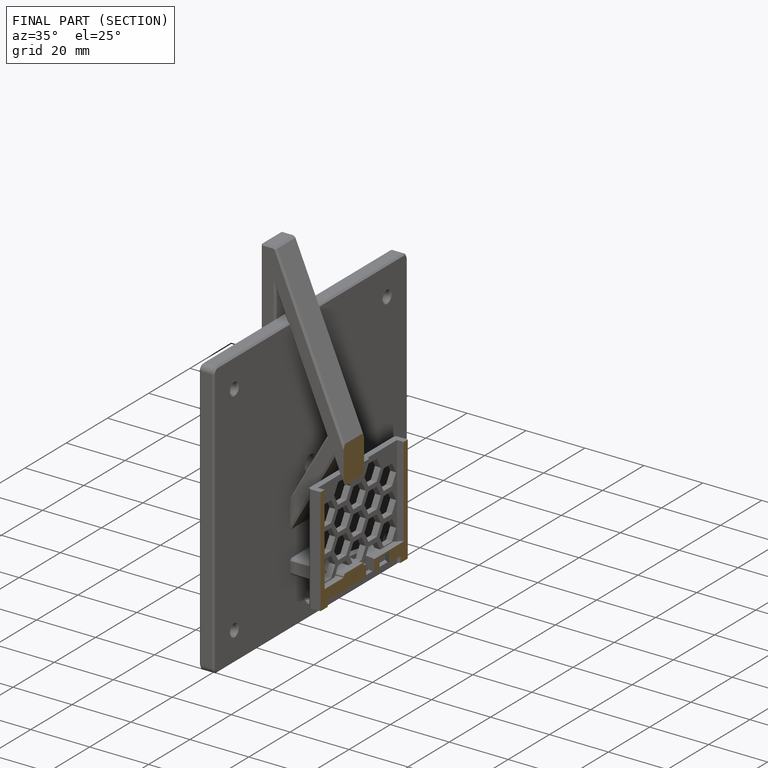
[diagram: finished part — half-section view (interior)]
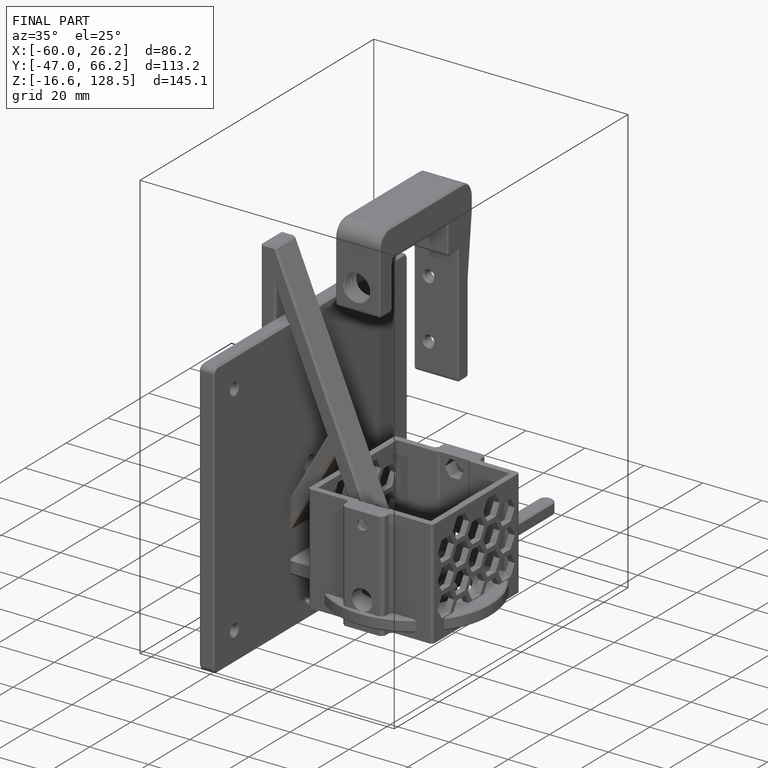
[diagram: finished part — iso view with bounding-box wireframe]
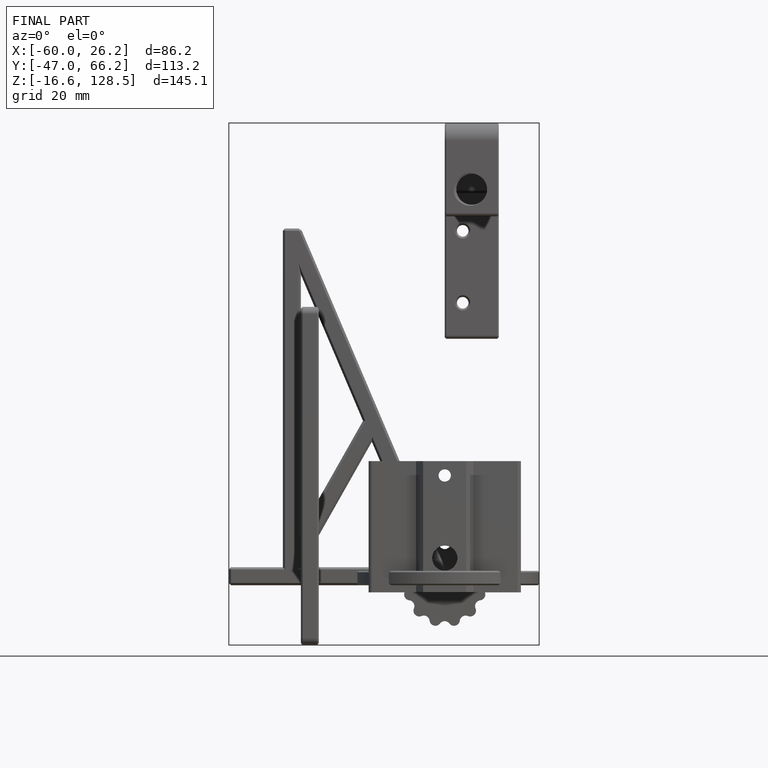
[diagram: finished part — front view with bounding-box wireframe]
